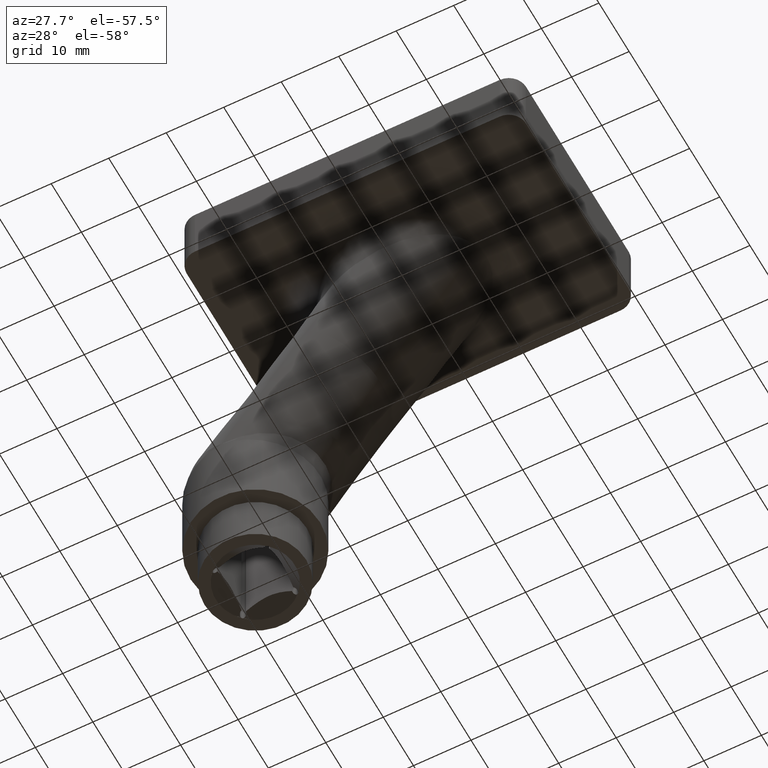
[diagram: clean part render]
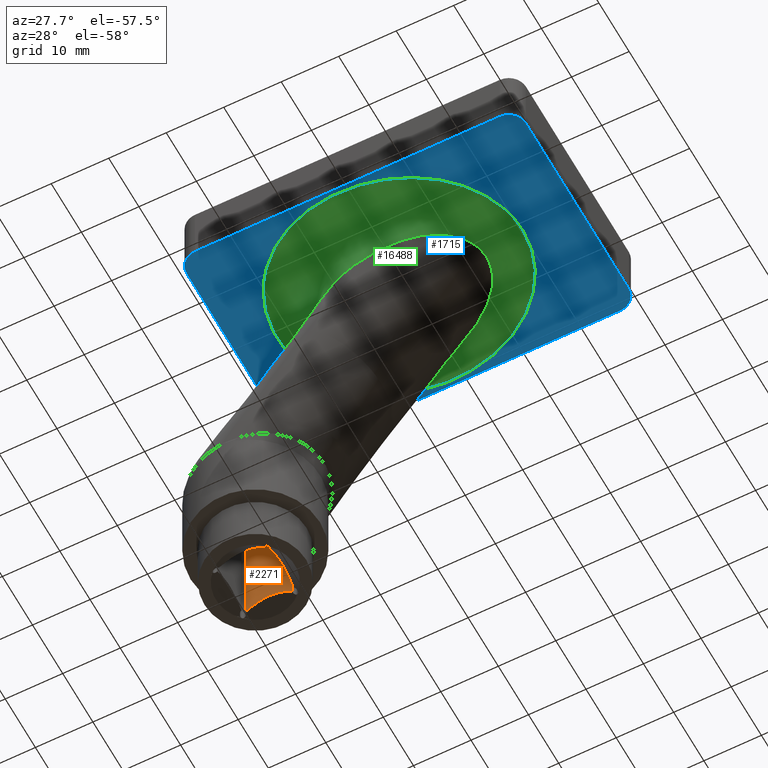
[diagram: same view with three faces highlighted in distinct colors, each labeled with its STEP entity id]
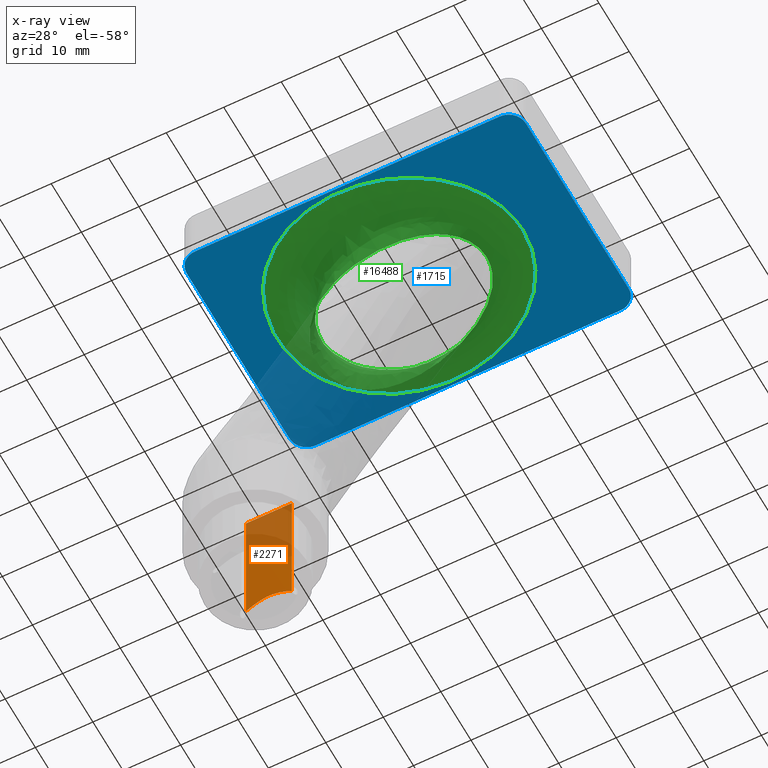
[diagram: x-ray of the same camera — body ghosted, the three highlighted faces saturated]
A machine part, auxiliary view with three faces highlighted in distinct colors.
The next image is the same camera in x-ray (body ghosted, the three faces saturated) — at least one of them is partly hidden behind the body in this view.
Their STEP definitions:

[orange] entity #2271 — the highlighted planar face has unit normal (0, -1, 0).
#389 = ORIENTED_EDGE ( 'NONE', *, *, #975, .F. ) ;
#975 = EDGE_CURVE ( 'NONE', #12867, #9622, #9710, .T. ) ;
#980 = CARTESIAN_POINT ( 'NONE',  ( -22.79888496657452279, 4.500000000000000000, -65.95826789495524167 ) ) ;
#1048 = CARTESIAN_POINT ( 'NONE',  ( -30.50000000000000711, 4.499999999999999112, -66.15683625871720608 ) ) ;
#1074 = LINE ( 'NONE', #12672, #9861 ) ;
#1115 = CARTESIAN_POINT ( 'NONE',  ( -27.22017388820816208, 4.500000000000000000, -64.68014750293195902 ) ) ;
#1302 = CARTESIAN_POINT ( 'NONE',  ( -30.50000000000000711, 4.499999999999999112, -66.15683625871720608 ) ) ;
#1344 = CARTESIAN_POINT ( 'NONE',  ( -22.50000000000000711, 4.499999999999999112, -41.00000000000000000 ) ) ;
#2271 = ADVANCED_FACE ( 'NONE', ( #16017 ), #3902, .T. ) ;
#2321 = CARTESIAN_POINT ( 'NONE',  ( -22.50000000000001066, 4.500000000000004441, -66.15683625871722029 ) ) ;
#2682 = EDGE_CURVE ( 'NONE', #12867, #4519, #6593, .T. ) ;
#3335 = DIRECTION ( 'NONE',  ( 1.000000000000000000, -0.000000000000000000, -0.000000000000000000 ) ) ;
#3902 = PLANE ( 'NONE',  #8485 ) ;
#4263 = DIRECTION ( 'NONE',  ( -0.000000000000000000, -0.000000000000000000, 1.000000000000000000 ) ) ;
#4519 = VERTEX_POINT ( 'NONE', #6264 ) ;
#5855 = ORIENTED_EDGE ( 'NONE', *, *, #16561, .T. ) ;
#6264 = CARTESIAN_POINT ( 'NONE',  ( -22.50000000000001066, 4.500000000000004441, -66.15683625871722029 ) ) ;
#6503 = CARTESIAN_POINT ( 'NONE',  ( -27.93171504531904503, 4.499999999999999112, -64.84561218851740705 ) ) ;
#6530 = VERTEX_POINT ( 'NONE', #1344 ) ;
#6593 = B_SPLINE_CURVE_WITH_KNOTS ( 'NONE', 3,
 ( #1048, #9325, #12275, #16551, #6503, #1115, #16489, #10812, #6694, #8182, #17977, #9382, #12213, #8113, #980, #2321 ),
 .UNSPECIFIED., .F., .F.,
 ( 4, 2, 2, 2, 2, 2, 2, 4 ),
 ( 0.005436506089160069756, 0.007597276169322701722, 0.008677661209404026812, 0.009758046249485350168, 0.01083843128956667526, 0.01191881632964799861, 0.01299920136972932197, 0.01407958640981064533 ),
 .UNSPECIFIED. ) ;
#6694 = CARTESIAN_POINT ( 'NONE',  ( -25.77200503447989988, 4.499999999999999112, -64.68160984082913956 ) ) ;
#7391 = ORIENTED_EDGE ( 'NONE', *, *, #2682, .T. ) ;
#8113 = CARTESIAN_POINT ( 'NONE',  ( -23.10336157524787382, 4.500000000000000888, -65.76812633962509835 ) ) ;
#8182 = CARTESIAN_POINT ( 'NONE',  ( -25.06615294182854825, 4.500000000000000000, -64.84646944479852948 ) ) ;
#8485 = AXIS2_PLACEMENT_3D ( 'NONE', #17937, #10967, #15541 ) ;
#8611 = CARTESIAN_POINT ( 'NONE',  ( -30.50000000000000711, 4.499999999999999112, -101.0315800540038396 ) ) ;
#9054 = LINE ( 'NONE', #9661, #16733 ) ;
#9241 = EDGE_CURVE ( 'NONE', #9622, #6530, #1074, .T. ) ;
#9325 = CARTESIAN_POINT ( 'NONE',  ( -29.89875319160037748, 4.499999999999999112, -65.75738962100449214 ) ) ;
#9382 = CARTESIAN_POINT ( 'NONE',  ( -24.05154407156038587, 4.500000000000000000, -65.24999013304301343 ) ) ;
#9622 = VERTEX_POINT ( 'NONE', #15400 ) ;
#9661 = CARTESIAN_POINT ( 'NONE',  ( -22.50000000000000711, 4.499999999999999112, -101.0315800540038396 ) ) ;
#9710 = LINE ( 'NONE', #8611, #11491 ) ;
#9861 = VECTOR ( 'NONE', #3335, 1000.000000000000000 ) ;
#10812 = CARTESIAN_POINT ( 'NONE',  ( -26.13857558787421809, 4.500000000000000000, -64.63607656205905982 ) ) ;
#10967 = DIRECTION ( 'NONE',  ( 0.000000000000000000, -1.000000000000000000, -0.000000000000000000 ) ) ;
#11491 = VECTOR ( 'NONE', #4263, 1000.000000000000000 ) ;
#12213 = CARTESIAN_POINT ( 'NONE',  ( -23.72972271411647327, 4.499999999999999112, -65.41407760113476400 ) ) ;
#12275 = CARTESIAN_POINT ( 'NONE',  ( -29.26892737583048643, 4.499999999999998224, -65.38535547606734610 ) ) ;
#12672 = CARTESIAN_POINT ( 'NONE',  ( -22.50000000000000711, 4.499999999999999112, -41.00000000000000000 ) ) ;
#12674 = ORIENTED_EDGE ( 'NONE', *, *, #9241, .F. ) ;
#12867 = VERTEX_POINT ( 'NONE', #1302 ) ;
#13950 = DIRECTION ( 'NONE',  ( -0.000000000000000000, -0.000000000000000000, 1.000000000000000000 ) ) ;
#15400 = CARTESIAN_POINT ( 'NONE',  ( -30.50000000000000711, 4.499999999999999112, -41.00000000000000000 ) ) ;
#15541 = DIRECTION ( 'NONE',  ( 0.000000000000000000, 0.000000000000000000, -1.000000000000000000 ) ) ;
#15682 = EDGE_LOOP ( 'NONE', ( #389, #7391, #5855, #12674 ) ) ;
#16017 = FACE_OUTER_BOUND ( 'NONE', #15682, .T. ) ;
#16489 = CARTESIAN_POINT ( 'NONE',  ( -26.86048769065884301, 4.499999999999999112, -64.63600142533013582 ) ) ;
#16551 = CARTESIAN_POINT ( 'NONE',  ( -28.27307158076159155, 4.500000000000000000, -64.96339581073524982 ) ) ;
#16561 = EDGE_CURVE ( 'NONE', #4519, #6530, #9054, .T. ) ;
#16733 = VECTOR ( 'NONE', #13950, 1000.000000000000000 ) ;
#17937 = CARTESIAN_POINT ( 'NONE',  ( -22.50000000000000711, 4.499999999999999112, -101.0315800540038396 ) ) ;
#17977 = CARTESIAN_POINT ( 'NONE',  ( -24.72329756892010622, 4.499999999999999112, -64.96452026264996960 ) ) ;

[blue] entity #1715 — the highlighted planar face has unit normal (0, 0, 1).
#12 = ORIENTED_EDGE ( 'NONE', *, *, #6515, .T. ) ;
#51 = DIRECTION ( 'NONE',  ( 0.000000000000000000, -0.000000000000000000, -1.000000000000000000 ) ) ;
#259 = CARTESIAN_POINT ( 'NONE',  ( 26.49999999999999645, -19.99999999999999645, 0.000000000000000000 ) ) ;
#271 = CARTESIAN_POINT ( 'NONE',  ( -17.25574759524515756, 13.22331163500231632, -3.469446951953614189E-15 ) ) ;
#329 = CARTESIAN_POINT ( 'NONE',  ( 19.18132393218330378, 5.246893871989417590, 0.000000000000000000 ) ) ;
#384 = CARTESIAN_POINT ( 'NONE',  ( 1.802502790597663385, 18.96138225805584909, -3.423875456688388738E-31 ) ) ;
#419 = EDGE_CURVE ( 'NONE', #10309, #8626, #13441, .T. ) ;
#426 = DIRECTION ( 'NONE',  ( -1.000000000000000000, -0.000000000000000000, -0.000000000000000000 ) ) ;
#496 = CARTESIAN_POINT ( 'NONE',  ( 5.037011761510285623, 18.25397969890640226, 1.040834085586084730E-14 ) ) ;
#558 = CARTESIAN_POINT ( 'NONE',  ( -8.128933386736870048, -18.44933239786298174, 7.222237291452186122E-31 ) ) ;
#612 = CARTESIAN_POINT ( 'NONE',  ( -15.24593925470038869, -14.98477108379642608, -0.000000000000000000 ) ) ;
#670 = CARTESIAN_POINT ( 'NONE',  ( 11.01450780495575721, -15.47894451652035208, -3.469446951953614978E-15 ) ) ;
#733 = CARTESIAN_POINT ( 'NONE',  ( 17.84436756901563115, -8.301999087841114289, -3.469446951953615767E-15 ) ) ;
#798 = DIRECTION ( 'NONE',  ( 1.000000000000000000, 0.000000000000000000, 0.000000000000000000 ) ) ;
#915 = DIRECTION ( 'NONE',  ( 1.000000000000000000, 0.000000000000000000, 0.000000000000000000 ) ) ;
#950 = ORIENTED_EDGE ( 'NONE', *, *, #17132, .T. ) ;
#958 = CARTESIAN_POINT ( 'NONE',  ( -29.49999999999999645, 17.00000000000000355, 0.000000000000000000 ) ) ;
#1084 = CIRCLE ( 'NONE', #7914, 2.999999999999999112 ) ;
#1608 = CARTESIAN_POINT ( 'NONE',  ( -0.8487407458965864349, 19.23226107187263523, 3.469446951953614978E-15 ) ) ;
#1672 = CARTESIAN_POINT ( 'NONE',  ( 19.37597228934492222, 4.612822983757392414, 0.000000000000000000 ) ) ;
#1715 = ADVANCED_FACE ( 'NONE', ( #5068, #10567 ), #8179, .F. ) ;
#1726 = CARTESIAN_POINT ( 'NONE',  ( 19.80993721011314435, 2.673063860259522695, -3.469446951953612611E-15 ) ) ;
#1782 = CARTESIAN_POINT ( 'NONE',  ( -0.1783191928115404890, 19.19123126171463056, -3.469446951953613400E-15 ) ) ;
#1900 = CARTESIAN_POINT ( 'NONE',  ( -16.78580260807747138, -13.68671043128202136, 3.469446951953614189E-15 ) ) ;
#1951 = CARTESIAN_POINT ( 'NONE',  ( -26.49999999999999645, 20.00000000000000355, 0.000000000000000000 ) ) ;
#1958 = CARTESIAN_POINT ( 'NONE',  ( -21.29873346366283116, -7.149762476909946152, -5.204170427930422072E-15 ) ) ;
#2016 = CARTESIAN_POINT ( 'NONE',  ( -8.776023853299736999, -18.26253320440223504, -3.469446951953614189E-15 ) ) ;
#2070 = CARTESIAN_POINT ( 'NONE',  ( -19.79992980674632364, -10.11638760502446566, 0.000000000000000000 ) ) ;
#2131 = CARTESIAN_POINT ( 'NONE',  ( -22.65414166795012108, -1.334356758547996957, -1.444447458290434334E-31 ) ) ;
#2383 = DIRECTION ( 'NONE',  ( 0.000000000000000000, -0.000000000000000000, -1.000000000000000000 ) ) ;
#2676 = DIRECTION ( 'NONE',  ( 0.000000000000000000, -0.000000000000000000, -1.000000000000000000 ) ) ;
#3017 = CARTESIAN_POINT ( 'NONE',  ( -8.750501567939437564, 18.26737832130535821, 1.387778780781448200E-14 ) ) ;
#3022 = ORIENTED_EDGE ( 'NONE', *, *, #3125, .T. ) ;
#3080 = CARTESIAN_POINT ( 'NONE',  ( 14.19171188980443077, 12.99330440230905737, 0.000000000000000000 ) ) ;
#3125 = EDGE_CURVE ( 'NONE', #6972, #3617, #15167, .T. ) ;
#3137 = CARTESIAN_POINT ( 'NONE',  ( -19.79217995383566731, 10.12027820356646224, 5.204170427930420494E-15 ) ) ;
#3144 = LINE ( 'NONE', #11710, #12807 ) ;
#3193 = CARTESIAN_POINT ( 'NONE',  ( -15.25820686203977594, 14.96915462888833837, 3.423875456688407130E-31 ) ) ;
#3254 = CARTESIAN_POINT ( 'NONE',  ( 9.342470467623066099, 16.46056486205791103, 3.423875456688388738E-31 ) ) ;
#3314 = CARTESIAN_POINT ( 'NONE',  ( -18.17766166060195587, -12.23635294891863445, -5.204170427930420494E-15 ) ) ;
#3370 = CARTESIAN_POINT ( 'NONE',  ( -13.59965306725388245, -16.10599303540016791, 3.250006781153483711E-31 ) ) ;
#3432 = CARTESIAN_POINT ( 'NONE',  ( 10.45117788784755319, -15.83004887775391012, 3.469446951953614189E-15 ) ) ;
#3491 = CARTESIAN_POINT ( 'NONE',  ( 14.18960962472793774, -13.03565257498073571, 5.204170427930433116E-15 ) ) ;
#3550 = CARTESIAN_POINT ( 'NONE',  ( -22.40948946080885662, -3.315648314045179124, -3.469446951953614978E-15 ) ) ;
#3617 = VERTEX_POINT ( 'NONE', #5134 ) ;
#3788 = VECTOR ( 'NONE', #14320, 1000.000000000000000 ) ;
#4247 = B_SPLINE_CURVE_WITH_KNOTS ( 'NONE', 3,
 ( #12708, #5849, #10245, #1726, #6024, #1672, #329, #7384, #15811, #14460, #4508, #11499, #10136, #11670, #12824, #3080, #7498, #4673, #8716, #3254, #17279, #8830, #8886, #496, #14292, #384, #12950, #1782, #1608, #4445, #13007, #15637, #10190, #11440, #3017, #17160, #4617, #14239, #7272, #3193, #17049, #8661, #271, #11557, #5908, #3137, #15696, #7441, #7331, #4562, #14349, #5968, #8777, #11612, #14406, #17216, #2131, #15927, #3550, #16098, #10419, #7791, #1958, #11775, #2070, #9060, #3314, #11889, #1900, #4845, #612, #8941, #3370, #16160, #13122, #2016, #558, #11832, #14573, #11948, #10486, #13183, #4729, #13354, #4785, #11723, #9002, #4959, #9122, #4904, #6193, #3432, #670, #7554, #14515, #3491, #13295, #13240, #6134, #14690, #15978, #17343, #733, #14630, #6312, #10360, #6252, #16036, #7730, #14750, #7607, #17400 ),
 .UNSPECIFIED., .T., .F.,
 ( 4, 2, 2, 2, 2, 2, 2, 2, 2, 2, 2, 2, 2, 2, 2, 2, 2, 2, 2, 2, 2, 2, 2, 2, 2, 2, 2, 2, 2, 2, 2, 2, 2, 2, 2, 2, 2, 2, 2, 2, 2, 2, 2, 2, 2, 2, 2, 2, 2, 2, 2, 2, 2, 2, 2, 4 ),
 ( 0.000000000000000000, 0.002020911401338640941, 0.004041822802677281883, 0.006062734204015923258, 0.007073189904685242210, 0.008083645605354560296, 0.01212546840803183611, 0.01414637980937047401, 0.01616729121070911018, 0.02020911401338637906, 0.02223002541472502216, 0.02425093681606366181, 0.02829275961874094455, 0.03031367102007958766, 0.03233458242141822730, 0.03637640522409550659, 0.03839731662543414970, 0.04041822802677278587, 0.04446005082945007209, 0.04648096223078870826, 0.04850187363212735137, 0.05052278503346600141, 0.05254369643480463759, 0.05658551923748191687, 0.05759597493815123842, 0.05860643063882055998, 0.06062734204015920308, 0.06466916484283646849, 0.06669007624417511160, 0.06871098764551375471, 0.07073189904685238394, 0.07275281044819102705, 0.07679463325086831327, 0.07881554465220695638, 0.08083645605354558561, 0.08285736745488422872, 0.08487827885622287183, 0.08892010165890015805, 0.09094101306023878728, 0.09296192446157743039, 0.09700374726425473049, 0.09902465866559338747, 0.1010455700669320306, 0.1050873928696093029, 0.1071083042709479460, 0.1091292156722865891, 0.1111501270736252323, 0.1131710384749638754, 0.1172128612776411616, 0.1182233169783104831, 0.1192337726789798047, 0.1212546840803184478, 0.1232755954816570909, 0.1252965068829957340, 0.1273174182843343771, 0.1293383296856729925 ),
 .UNSPECIFIED. ) ;
#4365 = ORIENTED_EDGE ( 'NONE', *, *, #4618, .T. ) ;
#4445 = CARTESIAN_POINT ( 'NONE',  ( -2.854710504209263977, 19.27138749281365548, 3.469446951953614189E-15 ) ) ;
#4508 = CARTESIAN_POINT ( 'NONE',  ( 18.29496561918128705, 7.415051191455348523, 5.204170427930422072E-15 ) ) ;
#4562 = CARTESIAN_POINT ( 'NONE',  ( -21.52477295580469629, 6.535261288060140394, 3.469446951953615767E-15 ) ) ;
#4617 = CARTESIAN_POINT ( 'NONE',  ( -11.85704721780153470, 17.08845460195537314, 0.000000000000000000 ) ) ;
#4618 = EDGE_CURVE ( 'NONE', #9970, #8626, #15368, .T. ) ;
#4673 = CARTESIAN_POINT ( 'NONE',  ( 12.15649306997030088, 14.73356300921880724, 0.000000000000000000 ) ) ;
#4729 = CARTESIAN_POINT ( 'NONE',  ( -0.2357380021158265726, -19.19488544232150318, 5.055566104016655264E-31 ) ) ;
#4785 = CARTESIAN_POINT ( 'NONE',  ( 1.748683438357238051, -18.96859669928658221, -3.469446951953603539E-15 ) ) ;
#4845 = CARTESIAN_POINT ( 'NONE',  ( -15.77622147409410402, -14.56866375761230437, 3.469446951953614189E-15 ) ) ;
#4904 = CARTESIAN_POINT ( 'NONE',  ( 8.704030429825523996, -16.78396459821566467, 5.204170427930421283E-15 ) ) ;
#4959 = CARTESIAN_POINT ( 'NONE',  ( 6.869251291074831123, -17.59103901796119018, -6.938893903907231533E-15 ) ) ;
#4971 = ORIENTED_EDGE ( 'NONE', *, *, #16568, .F. ) ;
#5068 = FACE_BOUND ( 'NONE', #8639, .T. ) ;
#5134 = CARTESIAN_POINT ( 'NONE',  ( 29.49999999999999645, 17.00000000000000355, 0.000000000000000000 ) ) ;
#5561 = DIRECTION ( 'NONE',  ( 8.673617379884035472E-17, -1.000000000000000000, 0.000000000000000000 ) ) ;
#5849 = CARTESIAN_POINT ( 'NONE',  ( 20.01259024382805762, 0.6730591445406197693, 0.000000000000000000 ) ) ;
#5908 = CARTESIAN_POINT ( 'NONE',  ( -18.59359503030958294, 11.72823118697855094, 5.204170427930423650E-15 ) ) ;
#5968 = CARTESIAN_POINT ( 'NONE',  ( -21.95342718329411369, 5.263436271669938549, -5.204170427930420494E-15 ) ) ;
#6024 = CARTESIAN_POINT ( 'NONE',  ( 19.69027418138582419, 3.325906789533940699, -0.000000000000000000 ) ) ;
#6134 = CARTESIAN_POINT ( 'NONE',  ( 16.37830413119792539, -10.53754461055345182, 2.888894916581059157E-31 ) ) ;
#6193 = CARTESIAN_POINT ( 'NONE',  ( 9.295940960859413238, -16.48256198024835939, 3.469446951953614189E-15 ) ) ;
#6252 = CARTESIAN_POINT ( 'NONE',  ( 19.37459036147501124, -4.615626362291560092, 5.204170427930419706E-15 ) ) ;
#6312 = CARTESIAN_POINT ( 'NONE',  ( 18.71105615848640369, -6.509380037646070427, -5.204170427930421283E-15 ) ) ;
#6515 = EDGE_CURVE ( 'NONE', #13121, #11543, #1084, .T. ) ;
#6676 = ORIENTED_EDGE ( 'NONE', *, *, #8418, .F. ) ;
#6834 = DIRECTION ( 'NONE',  ( 0.000000000000000000, -0.000000000000000000, -1.000000000000000000 ) ) ;
#6972 = VERTEX_POINT ( 'NONE', #7395 ) ;
#7010 = CARTESIAN_POINT ( 'NONE',  ( 26.50000000000000000, 17.00000000000000355, 0.000000000000000000 ) ) ;
#7119 = CARTESIAN_POINT ( 'NONE',  ( -26.49999999999999289, -16.99999999999999645, 0.000000000000000000 ) ) ;
#7272 = CARTESIAN_POINT ( 'NONE',  ( -14.16855900437081495, 15.74020879608088030, -5.777789833161748722E-31 ) ) ;
#7299 = CARTESIAN_POINT ( 'NONE',  ( -29.49999999999999289, -19.99999999999999645, 0.000000000000000000 ) ) ;
#7303 = VERTEX_POINT ( 'NONE', #12324 ) ;
#7331 = CARTESIAN_POINT ( 'NONE',  ( -21.28160699028295255, 7.158090429882301819, 3.469446951953613400E-15 ) ) ;
#7384 = CARTESIAN_POINT ( 'NONE',  ( 18.83358469475315999, 6.184039409142709331, 0.000000000000000000 ) ) ;
#7395 = CARTESIAN_POINT ( 'NONE',  ( 26.50000000000000000, 20.00000000000000355, 0.000000000000000000 ) ) ;
#7441 = CARTESIAN_POINT ( 'NONE',  ( -21.15209182340150562, 7.465099406425288464, 3.469446951953614189E-15 ) ) ;
#7498 = CARTESIAN_POINT ( 'NONE',  ( 13.69501840676910653, 13.44932262735709294, -0.000000000000000000 ) ) ;
#7554 = CARTESIAN_POINT ( 'NONE',  ( 12.11133259787664862, -14.72485259914834721, -3.469446951953614189E-15 ) ) ;
#7594 = CARTESIAN_POINT ( 'NONE',  ( -26.49999999999999289, -19.99999999999999645, 0.000000000000000000 ) ) ;
#7607 = CARTESIAN_POINT ( 'NONE',  ( 20.01240226575606584, -0.6748179855327099963, 5.777789833161688291E-31 ) ) ;
#7730 = CARTESIAN_POINT ( 'NONE',  ( 19.81127537088795165, -2.661477156598849980, 3.469446951953598017E-15 ) ) ;
#7782 = AXIS2_PLACEMENT_3D ( 'NONE', #13687, #14952, #915 ) ;
#7791 = CARTESIAN_POINT ( 'NONE',  ( -21.54338578192724896, -6.520388827000110687, -3.469446951953615767E-15 ) ) ;
#7914 = AXIS2_PLACEMENT_3D ( 'NONE', #15366, #51, #11161 ) ;
#7960 = LINE ( 'NONE', #16892, #8413 ) ;
#8179 = PLANE ( 'NONE',  #7782 ) ;
#8413 = VECTOR ( 'NONE', #5561, 1000.000000000000000 ) ;
#8418 = EDGE_CURVE ( 'NONE', #9970, #3617, #10988, .T. ) ;
#8517 = DIRECTION ( 'NONE',  ( 1.000000000000000000, 0.000000000000000000, 0.000000000000000000 ) ) ;
#8620 = AXIS2_PLACEMENT_3D ( 'NONE', #9447, #2383, #798 ) ;
#8626 = VERTEX_POINT ( 'NONE', #259 ) ;
#8639 = EDGE_LOOP ( 'NONE', ( #950 ) ) ;
#8661 = CARTESIAN_POINT ( 'NONE',  ( -16.77916368821345117, 13.68533102402647827, -3.469446951953612611E-15 ) ) ;
#8716 = CARTESIAN_POINT ( 'NONE',  ( 11.06592043517484925, 15.48234298542397980, 1.155557966632343088E-30 ) ) ;
#8777 = CARTESIAN_POINT ( 'NONE',  ( -22.12737808373417892, 4.620683517185214306, -3.469446951953622472E-15 ) ) ;
#8830 = CARTESIAN_POINT ( 'NONE',  ( 7.545667667244942756, 17.31740039786564012, 5.204170427930422072E-15 ) ) ;
#8876 = CARTESIAN_POINT ( 'NONE',  ( 29.49999999999999645, 20.00000000000000355, 0.000000000000000000 ) ) ;
#8886 = CARTESIAN_POINT ( 'NONE',  ( 6.924574971257657197, 17.57176283524646720, 1.040834085586083468E-14 ) ) ;
#8941 = CARTESIAN_POINT ( 'NONE',  ( -14.15884239650773502, -15.75229684242042083, 0.000000000000000000 ) ) ;
#9002 = CARTESIAN_POINT ( 'NONE',  ( 4.984400791744038273, -18.26750159892769076, -6.938893903907233111E-15 ) ) ;
#9060 = CARTESIAN_POINT ( 'NONE',  ( -18.60782936379017372, -11.71861030243835522, -3.423875456688370784E-31 ) ) ;
#9122 = CARTESIAN_POINT ( 'NONE',  ( 7.492033717893788136, -17.33777232417586234, 5.204170427930421283E-15 ) ) ;
#9447 = CARTESIAN_POINT ( 'NONE',  ( 26.49999999999999645, -16.99999999999999289, 0.000000000000000000 ) ) ;
#9703 = DIRECTION ( 'NONE',  ( 1.000000000000000000, 0.000000000000000000, 0.000000000000000000 ) ) ;
#9970 = VERTEX_POINT ( 'NONE', #11058 ) ;
#10016 = CIRCLE ( 'NONE', #15085, 2.999999999999999112 ) ;
#10136 = CARTESIAN_POINT ( 'NONE',  ( 16.81305094011355905, 10.01511776551828881, 0.000000000000000000 ) ) ;
#10190 = CARTESIAN_POINT ( 'NONE',  ( -6.803587777780267132, 18.76609105128302346, 3.469446951953615767E-15 ) ) ;
#10245 = CARTESIAN_POINT ( 'NONE',  ( 19.97121657841041653, 1.347839570891224970, -3.469446951953615767E-15 ) ) ;
#10309 = VERTEX_POINT ( 'NONE', #7594 ) ;
#10360 = CARTESIAN_POINT ( 'NONE',  ( 19.17590982609834782, -5.260432318850533306, -5.204170427930422072E-15 ) ) ;
#10419 = CARTESIAN_POINT ( 'NONE',  ( -21.95916871762797840, -5.253229604945508946, -3.469446951953613400E-15 ) ) ;
#10486 = CARTESIAN_POINT ( 'NONE',  ( -2.905003448689253531, -19.26955221333398782, -1.387778780781458297E-14 ) ) ;
#10567 = FACE_OUTER_BOUND ( 'NONE', #11452, .T. ) ;
#10988 = LINE ( 'NONE', #8876, #14261 ) ;
#11058 = CARTESIAN_POINT ( 'NONE',  ( 29.49999999999999645, -16.99999999999999289, 0.000000000000000000 ) ) ;
#11161 = DIRECTION ( 'NONE',  ( 1.000000000000000000, 0.000000000000000000, 0.000000000000000000 ) ) ;
#11440 = CARTESIAN_POINT ( 'NONE',  ( -8.104306242534329741, 18.45354457161061390, 3.469446951953614189E-15 ) ) ;
#11452 = EDGE_LOOP ( 'NONE', ( #6676, #4365, #13236, #16609, #4971, #12, #12835, #3022 ) ) ;
#11499 = CARTESIAN_POINT ( 'NONE',  ( 17.53804818635100560, 8.909769567557933811, 5.204170427930421283E-15 ) ) ;
#11543 = VERTEX_POINT ( 'NONE', #1951 ) ;
#11557 = CARTESIAN_POINT ( 'NONE',  ( -18.16179229064365330, 12.24645112726504159, -3.469446951953615767E-15 ) ) ;
#11612 = CARTESIAN_POINT ( 'NONE',  ( -22.54573341566602096, 2.674882909008491350, -3.469446951953605511E-15 ) ) ;
#11670 = CARTESIAN_POINT ( 'NONE',  ( 15.56812993101553566, 11.55397873959219268, 0.000000000000000000 ) ) ;
#11710 = CARTESIAN_POINT ( 'NONE',  ( -29.49999999999999645, 20.00000000000000355, 0.000000000000000000 ) ) ;
#11723 = CARTESIAN_POINT ( 'NONE',  ( 3.703907355932424039, -18.61030196343656584, -3.469446951953614189E-15 ) ) ;
#11775 = CARTESIAN_POINT ( 'NONE',  ( -20.47312819043015608, -8.974462389260507322, -5.204170427930421283E-15 ) ) ;
#11832 = CARTESIAN_POINT ( 'NONE',  ( -6.835063868554485111, -18.76137622254659121, 8.559688641720927179E-31 ) ) ;
#11889 = CARTESIAN_POINT ( 'NONE',  ( -17.26630055368678285, -13.22046659875033825, -5.204170427930421283E-15 ) ) ;
#11948 = CARTESIAN_POINT ( 'NONE',  ( -4.224479732083636030, -19.18368245871317157, 3.469446951953525048E-15 ) ) ;
#12324 = CARTESIAN_POINT ( 'NONE',  ( 20.01249625479205818, -0.0008794204960473978256, 0.000000000000000000 ) ) ;
#12708 = CARTESIAN_POINT ( 'NONE',  ( 20.01249625479206173, -0.0008794204960475035353, 2.888894916580854217E-31 ) ) ;
#12807 = VECTOR ( 'NONE', #426, 1000.000000000000000 ) ;
#12824 = CARTESIAN_POINT ( 'NONE',  ( 15.12665937873019395, 12.04687585781659287, -0.000000000000000000 ) ) ;
#12835 = ORIENTED_EDGE ( 'NONE', *, *, #16359, .F. ) ;
#12950 = CARTESIAN_POINT ( 'NONE',  ( 1.145897975334389640, 19.05579658287193467, -3.469446951953613400E-15 ) ) ;
#13007 = CARTESIAN_POINT ( 'NONE',  ( -4.180117291731900053, 19.18729551083243479, 0.000000000000000000 ) ) ;
#13121 = VERTEX_POINT ( 'NONE', #958 ) ;
#13122 = CARTESIAN_POINT ( 'NONE',  ( -10.67107842840536946, -17.61952165026855255, -3.469446951953614189E-15 ) ) ;
#13183 = CARTESIAN_POINT ( 'NONE',  ( -0.9072363724584378009, -19.23448887584937950, -1.387778780781452144E-14 ) ) ;
#13214 = EDGE_CURVE ( 'NONE', #10309, #15488, #10016, .T. ) ;
#13236 = ORIENTED_EDGE ( 'NONE', *, *, #419, .F. ) ;
#13240 = CARTESIAN_POINT ( 'NONE',  ( 16.17482430992993869, -10.80174239403848624, 0.000000000000000000 ) ) ;
#13295 = CARTESIAN_POINT ( 'NONE',  ( 15.12645950999159439, -12.09378304886523203, 0.000000000000000000 ) ) ;
#13354 = CARTESIAN_POINT ( 'NONE',  ( 1.091153722399145209, -19.06185808446930707, 5.135813185032446481E-31 ) ) ;
#13441 = LINE ( 'NONE', #7299, #3788 ) ;
#13687 = CARTESIAN_POINT ( 'NONE',  ( 0.000000000000000000, 0.000000000000000000, 0.000000000000000000 ) ) ;
#14239 = CARTESIAN_POINT ( 'NONE',  ( -13.59883364874932532, 16.10131626900895796, 0.000000000000000000 ) ) ;
#14261 = VECTOR ( 'NONE', #17693, 1000.000000000000000 ) ;
#14292 = CARTESIAN_POINT ( 'NONE',  ( 3.756093236521085288, 18.59944195774702180, 0.000000000000000000 ) ) ;
#14320 = DIRECTION ( 'NONE',  ( 1.000000000000000000, 0.000000000000000000, 0.000000000000000000 ) ) ;
#14349 = CARTESIAN_POINT ( 'NONE',  ( -21.63873056346839263, 6.218451581440977982, -5.204170427930422072E-15 ) ) ;
#14406 = CARTESIAN_POINT ( 'NONE',  ( -22.68791368157156541, 1.354508512987127489, 3.469446951953598806E-15 ) ) ;
#14460 = CARTESIAN_POINT ( 'NONE',  ( 18.43914588633452922, 7.109494042467683350, -2.739100365350716245E-30 ) ) ;
#14515 = CARTESIAN_POINT ( 'NONE',  ( 12.64697168910241665, -14.32004303414327495, 5.204170427930407873E-15 ) ) ;
#14573 = CARTESIAN_POINT ( 'NONE',  ( -6.184795414104144129, -18.88795296907057875, 3.469446951953636671E-15 ) ) ;
#14630 = CARTESIAN_POINT ( 'NONE',  ( 18.44413321669804517, -7.117400298144795023, -3.469446951953614189E-15 ) ) ;
#14690 = CARTESIAN_POINT ( 'NONE',  ( 16.77241555345485224, -9.997137891519914277, 1.027162637006467401E-30 ) ) ;
#14750 = CARTESIAN_POINT ( 'NONE',  ( 19.97156297238658240, -1.339802771174343654, 3.469446951953597623E-15 ) ) ;
#14952 = DIRECTION ( 'NONE',  ( -0.000000000000000000, 0.000000000000000000, 1.000000000000000000 ) ) ;
#15085 = AXIS2_PLACEMENT_3D ( 'NONE', #7119, #2676, #8517 ) ;
#15167 = CIRCLE ( 'NONE', #17866, 2.999999999999999112 ) ;
#15366 = CARTESIAN_POINT ( 'NONE',  ( -26.49999999999999645, 17.00000000000000355, 0.000000000000000000 ) ) ;
#15368 = CIRCLE ( 'NONE', #8620, 2.999999999999999112 ) ;
#15488 = VERTEX_POINT ( 'NONE', #17379 ) ;
#15637 = CARTESIAN_POINT ( 'NONE',  ( -6.150011894375841059, 18.89259886713325898, 0.000000000000000000 ) ) ;
#15696 = CARTESIAN_POINT ( 'NONE',  ( -20.46543835572193260, 8.978440279444219740, 3.469446951953614189E-15 ) ) ;
#15811 = CARTESIAN_POINT ( 'NONE',  ( 18.70835916686747780, 6.494089949875255563, -2.744450170751808288E-30 ) ) ;
#15927 = CARTESIAN_POINT ( 'NONE',  ( -22.51405379972033671, -2.660108824113103676, 3.423875456688370784E-31 ) ) ;
#15978 = CARTESIAN_POINT ( 'NONE',  ( 16.96349999263718189, -9.720187980252497084, 5.204170427930422072E-15 ) ) ;
#16036 = CARTESIAN_POINT ( 'NONE',  ( 19.69181889770427674, -3.316632921726338168, 5.204170427930420494E-15 ) ) ;
#16098 = CARTESIAN_POINT ( 'NONE',  ( -22.13204793101692758, -4.612208919380940131, -3.469446951953614189E-15 ) ) ;
#16160 = CARTESIAN_POINT ( 'NONE',  ( -11.87775699512610572, -17.08186921640050571, -2.704861610783841589E-29 ) ) ;
#16359 = EDGE_CURVE ( 'NONE', #6972, #11543, #3144, .T. ) ;
#16568 = EDGE_CURVE ( 'NONE', #13121, #15488, #7960, .T. ) ;
#16609 = ORIENTED_EDGE ( 'NONE', *, *, #13214, .T. ) ;
#16892 = CARTESIAN_POINT ( 'NONE',  ( -29.49999999999999645, 20.00000000000000355, 0.000000000000000000 ) ) ;
#17049 = CARTESIAN_POINT ( 'NONE',  ( -15.78039518208496794, 14.55825460643133340, -3.469446951953614189E-15 ) ) ;
#17132 = EDGE_CURVE ( 'NONE', #7303, #7303, #4247, .T. ) ;
#17160 = CARTESIAN_POINT ( 'NONE',  ( -10.64356525686504185, 17.62676560951882365, 1.387778780781445676E-14 ) ) ;
#17216 = CARTESIAN_POINT ( 'NONE',  ( -22.68955307447685854, -0.6619235971975805377, 3.469446951953605906E-15 ) ) ;
#17279 = CARTESIAN_POINT ( 'NONE',  ( 8.753261507622539739, 16.76227041985914568, 5.204170427930423650E-15 ) ) ;
#17343 = CARTESIAN_POINT ( 'NONE',  ( 17.51151502512621150, -8.878572924612848638, 5.204170427930421283E-15 ) ) ;
#17379 = CARTESIAN_POINT ( 'NONE',  ( -29.49999999999999289, -17.00000000000000000, 0.000000000000000000 ) ) ;
#17400 = CARTESIAN_POINT ( 'NONE',  ( 20.01249625479206173, -0.0008794204960475035353, 2.888894916580854217E-31 ) ) ;
#17693 = DIRECTION ( 'NONE',  ( -0.000000000000000000, 1.000000000000000000, -0.000000000000000000 ) ) ;
#17866 = AXIS2_PLACEMENT_3D ( 'NONE', #7010, #6834, #9703 ) ;

[green] entity #16488 — the highlighted face is a freeform B-spline surface patch.
#39 = CARTESIAN_POINT ( 'NONE',  ( 12.91094664629832600, -14.11031796857637666, 2.081668171172168513E-14 ) ) ;
#103 = CARTESIAN_POINT ( 'NONE',  ( -1.975089806656604496, -11.29615663439827955, -7.114734264599975653E-12 ) ) ;
#165 = CARTESIAN_POINT ( 'NONE',  ( -6.095608568434742303, -8.822336541749308481, -1.171648321877291005E-12 ) ) ;
#228 = CARTESIAN_POINT ( 'NONE',  ( -6.689396433296291633, -10.69843151577119933, -9.606241794627198516 ) ) ;
#271 = CARTESIAN_POINT ( 'NONE',  ( -17.25574759524515756, 13.22331163500231632, -3.469446951953614189E-15 ) ) ;
#288 = CARTESIAN_POINT ( 'NONE',  ( -5.863269831885408401, -18.97181738419268271, -5.204170427930421283E-15 ) ) ;
#290 = CARTESIAN_POINT ( 'NONE',  ( 5.316243049904927354, -9.968661294944068274, -5.519343211838812380 ) ) ;
#329 = CARTESIAN_POINT ( 'NONE',  ( 19.18132393218330378, 5.246893871989417590, 0.000000000000000000 ) ) ;
#345 = CARTESIAN_POINT ( 'NONE',  ( -11.58647065117727593, -8.436215235432358739, -11.08879581367021139 ) ) ;
#384 = CARTESIAN_POINT ( 'NONE',  ( 1.802502790597663385, 18.96138225805584909, -3.423875456688388738E-31 ) ) ;
#401 = CARTESIAN_POINT ( 'NONE',  ( -8.847771220675378245, -2.346349314116517704, 3.479729433423714359E-12 ) ) ;
#403 = CARTESIAN_POINT ( 'NONE',  ( 13.70670344733037638, -1.355252715606880543E-15, -3.076893633488702928 ) ) ;
#459 = CARTESIAN_POINT ( 'NONE',  ( -15.75202553935920591, 0.2247136540519290293, -11.97561441083115241 ) ) ;
#462 = CARTESIAN_POINT ( 'NONE',  ( -2.917312237961914523, -11.24693078246511568, -8.320427164051173108 ) ) ;
#496 = CARTESIAN_POINT ( 'NONE',  ( 5.037011761510285623, 18.25397969890640226, 1.040834085586084730E-14 ) ) ;
#512 = CARTESIAN_POINT ( 'NONE',  ( -12.73149668779649879, 16.64069821652027414, -5.204170427930421283E-15 ) ) ;
#514 = CARTESIAN_POINT ( 'NONE',  ( -5.402626412027115244, -10.98516654026990125, -9.176405043126390382 ) ) ;
#558 = CARTESIAN_POINT ( 'NONE',  ( -8.128933386736870048, -18.44933239786298174, 7.222237291452186122E-31 ) ) ;
#575 = CARTESIAN_POINT ( 'NONE',  ( -8.879751030993245919, 1.003575219730908241, 0.000000000000000000 ) ) ;
#576 = CARTESIAN_POINT ( 'NONE',  ( -14.66808036381738312, -4.733338070191972946, -11.79129905251430088 ) ) ;
#612 = CARTESIAN_POINT ( 'NONE',  ( -15.24593925470038869, -14.98477108379642608, -0.000000000000000000 ) ) ;
#629 = CARTESIAN_POINT ( 'NONE',  ( -8.859157257012002518, 1.852903140682691685, 1.738099442774122078E-12 ) ) ;
#658 = CARTESIAN_POINT ( 'NONE',  ( 9.845953801584721887, 7.435530149827894952, -4.130130989714408507 ) ) ;
#670 = CARTESIAN_POINT ( 'NONE',  ( 11.01450780495575721, -15.47894451652035208, -3.469446951953614978E-15 ) ) ;
#686 = CARTESIAN_POINT ( 'NONE',  ( -10.56442448224816388, 9.144854343437458510, -10.81465768157489471 ) ) ;
#688 = CARTESIAN_POINT ( 'NONE',  ( 10.06832845828597378, 7.249933623520584902, -4.065902915771512305 ) ) ;
#718 = CARTESIAN_POINT ( 'NONE',  ( 5.948681877035641108, 11.62770640983286796, -2.022849255759463503E-12 ) ) ;
#733 = CARTESIAN_POINT ( 'NONE',  ( 17.84436756901563115, -8.301999087841114289, -3.469446951953615767E-15 ) ) ;
#748 = CARTESIAN_POINT ( 'NONE',  ( -14.07464485134559951, 5.823121934838404457, -11.67917382231238932 ) ) ;
#769 = EDGE_LOOP ( 'NONE', ( #16120 ) ) ;
#774 = CARTESIAN_POINT ( 'NONE',  ( 13.70920937102281556, 13.42622011158202433, 6.938893903907228378E-15 ) ) ;
#824 = CARTESIAN_POINT ( 'NONE',  ( 10.82985483060694598, 6.575767153482567018, -3.847667329912344059 ) ) ;
#882 = CARTESIAN_POINT ( 'NONE',  ( 8.956153095040084722, 8.096612692936581368, -4.391623914793816752 ) ) ;
#943 = CARTESIAN_POINT ( 'NONE',  ( 15.04341850548288662, 4.677219806306338157, 5.813775744861297018E-13 ) ) ;
#1012 = CARTESIAN_POINT ( 'NONE',  ( 13.37399239352910385, 7.278779232469246629, -2.319502191661299701E-12 ) ) ;
#1137 = CARTESIAN_POINT ( 'NONE',  ( 19.98294030186021430, 0.9916113097756049655, 1.734723475976807094E-15 ) ) ;
#1141 = CARTESIAN_POINT ( 'NONE',  ( 16.08166258583378294, 0.7585585654720571336, 2.602085213965210247E-15 ) ) ;
#1164 = CARTESIAN_POINT ( 'NONE',  ( 13.70670344733037282, -2.077520377691108076E-15, -3.076893633488702040 ) ) ;
#1173 = FACE_OUTER_BOUND ( 'NONE', #769, .T. ) ;
#1273 = CARTESIAN_POINT ( 'NONE',  ( 0.7508708627361175836, -11.09335746009676527, -7.046612371249314499 ) ) ;
#1332 = CARTESIAN_POINT ( 'NONE',  ( 14.27404316064771272, -6.032206973777483938, -5.768746746887312058E-13 ) ) ;
#1389 = CARTESIAN_POINT ( 'NONE',  ( 13.42766772101752970, -13.68023180657440996, 0.000000000000000000 ) ) ;
#1391 = FACE_OUTER_BOUND ( 'NONE', #14236, .T. ) ;
#1449 = CARTESIAN_POINT ( 'NONE',  ( 17.50673253949676322, -8.869111969091107994, 0.000000000000000000 ) ) ;
#1510 = CARTESIAN_POINT ( 'NONE',  ( -2.845594879864144833, -10.95548455778137331, 6.731927559123583418E-12 ) ) ;
#1568 = CARTESIAN_POINT ( 'NONE',  ( -8.871185402470127102, -1.560711018732398259, -2.871377642653554611E-12 ) ) ;
#1608 = CARTESIAN_POINT ( 'NONE',  ( -0.8487407458965864349, 19.23226107187263523, 3.469446951953614978E-15 ) ) ;
#1627 = CARTESIAN_POINT ( 'NONE',  ( -14.70019493302137725, -4.665405272069096831, -11.79705600035184965 ) ) ;
#1629 = CARTESIAN_POINT ( 'NONE',  ( -6.638093571480373711, -10.71093163339886978, -9.589221733869297992 ) ) ;
#1672 = CARTESIAN_POINT ( 'NONE',  ( 19.37597228934492222, 4.612822983757392414, 0.000000000000000000 ) ) ;
#1684 = CARTESIAN_POINT ( 'NONE',  ( -15.75267802941901074, -0.2035400737618551226, -11.97560945024298107 ) ) ;
#1726 = CARTESIAN_POINT ( 'NONE',  ( 19.80993721011314435, 2.673063860259522695, -3.469446951953612611E-15 ) ) ;
#1745 = CARTESIAN_POINT ( 'NONE',  ( -8.817042153360818091, -2.969365538489273870, -6.844547251016030207E-12 ) ) ;
#1782 = CARTESIAN_POINT ( 'NONE',  ( -0.1783191928115404890, 19.19123126171463056, -3.469446951953613400E-15 ) ) ;
#1800 = CARTESIAN_POINT ( 'NONE',  ( -20.89651577225523482, -8.060556863662039717, 5.204170427930421283E-15 ) ) ;
#1802 = CARTESIAN_POINT ( 'NONE',  ( 12.97475082236916499, -3.434703371400443572, -3.265495865343051030 ) ) ;
#1858 = CARTESIAN_POINT ( 'NONE',  ( -14.94004380609289839, 4.107289912664938925, -11.84220679744903215 ) ) ;
#1860 = CARTESIAN_POINT ( 'NONE',  ( 2.073506906042043685, -10.88035897870554791, -6.594647015706353699 ) ) ;
#1900 = CARTESIAN_POINT ( 'NONE',  ( -16.78580260807747138, -13.68671043128202136, 3.469446951953614189E-15 ) ) ;
#1916 = CARTESIAN_POINT ( 'NONE',  ( -8.890964018119969836, 0.09331423205033816115, 4.642732113127075158E-12 ) ) ;
#1918 = CARTESIAN_POINT ( 'NONE',  ( -7.920681394564289768, 10.35380390795258165, -10.01286716228783114 ) ) ;
#1958 = CARTESIAN_POINT ( 'NONE',  ( -21.29873346366283116, -7.149762476909946152, -5.204170427930422072E-15 ) ) ;
#1977 = CARTESIAN_POINT ( 'NONE',  ( -8.861926733224585462, 1.755365213904784172, -1.738863812956509897E-12 ) ) ;
#1981 = CARTESIAN_POINT ( 'NONE',  ( -15.31163373991133803, -3.084110848384693071, -11.90485750498204531 ) ) ;
#2016 = CARTESIAN_POINT ( 'NONE',  ( -8.776023853299736999, -18.26253320440223504, -3.469446951953614189E-15 ) ) ;
#2031 = CARTESIAN_POINT ( 'NONE',  ( -8.606525618042899950, 4.445466223625764712, -2.909245921666113183E-12 ) ) ;
#2032 = CARTESIAN_POINT ( 'NONE',  ( -13.56685308547072033, 6.531758211822004334, -11.57411390438014642 ) ) ;
#2054 = CARTESIAN_POINT ( 'NONE',  ( -0.09126452435732933244, 11.17079845105076252, -7.341175236163116402 ) ) ;
#2070 = CARTESIAN_POINT ( 'NONE',  ( -19.79992980674632364, -10.11638760502446566, 0.000000000000000000 ) ) ;
#2088 = CARTESIAN_POINT ( 'NONE',  ( -14.52240514603185062, 5.062257596803124038, -11.76676583980832369 ) ) ;
#2116 = CARTESIAN_POINT ( 'NONE',  ( 11.36145222500275231, 15.29003470604824777, 5.204170427930421283E-15 ) ) ;
#2131 = CARTESIAN_POINT ( 'NONE',  ( -22.65414166795012108, -1.334356758547996957, -1.444447458290434334E-31 ) ) ;
#2145 = CARTESIAN_POINT ( 'NONE',  ( 13.41911709634750594, 2.209410164428078360, -3.150764212279923537 ) ) ;
#2171 = CARTESIAN_POINT ( 'NONE',  ( 0.1730462837796259423, 19.16250955547028312, -1.040834085586084257E-14 ) ) ;
#2229 = CARTESIAN_POINT ( 'NONE',  ( 5.448492588091006894, 11.73447697050724869, -2.602085213965211036E-15 ) ) ;
#2286 = CARTESIAN_POINT ( 'NONE',  ( 7.870678830001814674, 17.17608629893318195, -3.469446951953614189E-15 ) ) ;
#2342 = CARTESIAN_POINT ( 'NONE',  ( 19.07116226161006978, -5.569791025486773961, -3.469446951953614189E-15 ) ) ;
#2345 = CARTESIAN_POINT ( 'NONE',  ( 12.16515155983584151, 4.907173140427434355, -3.481544722536105141 ) ) ;
#2354 = EDGE_CURVE ( 'NONE', #8171, #8171, #6981, .T. ) ;
#2414 = CARTESIAN_POINT ( 'NONE',  ( 12.39523199863184111, 4.546010789978776501, -3.419775619167798375 ) ) ;
#2476 = CARTESIAN_POINT ( 'NONE',  ( 19.90262369870236014, 2.336100966585562322, 1.734723475976807094E-15 ) ) ;
#2530 = CARTESIAN_POINT ( 'NONE',  ( 13.68181344736359861, -1.039238153396913722, -3.082948142435913752 ) ) ;
#2595 = CARTESIAN_POINT ( 'NONE',  ( 16.08166258583378294, 0.7585585654720571336, 2.602085213965210247E-15 ) ) ;
#2657 = CARTESIAN_POINT ( 'NONE',  ( 13.82266826797547132, -6.656319918629005628, 2.883255941380848557E-13 ) ) ;
#2714 = CARTESIAN_POINT ( 'NONE',  ( 13.16293555744124788, -7.455297552680541173, -2.870719816539948701E-13 ) ) ;
#2780 = CARTESIAN_POINT ( 'NONE',  ( 9.605765170456038504, -16.34932242493012211, 5.204170427930421283E-15 ) ) ;
#2845 = CARTESIAN_POINT ( 'NONE',  ( 2.863810890368827966, -12.01125333499098957, 2.316304805591924794E-12 ) ) ;
#2911 = CARTESIAN_POINT ( 'NONE',  ( 3.839999148744707824, -10.45137089507687733, -6.002457653233418178 ) ) ;
#2971 = CARTESIAN_POINT ( 'NONE',  ( -8.866610486700757576, -1.750566646758497269, 3.516007375583295799E-12 ) ) ;
#3017 = CARTESIAN_POINT ( 'NONE',  ( -8.750501567939437564, 18.26737832130535821, 1.387778780781448200E-14 ) ) ;
#3034 = CARTESIAN_POINT ( 'NONE',  ( -11.25102548460481344, -8.680010868086279530, -10.99909567585449999 ) ) ;
#3037 = CARTESIAN_POINT ( 'NONE',  ( -8.249795973645293046, -10.22167894102856955, -10.11192777419707234 ) ) ;
#3080 = CARTESIAN_POINT ( 'NONE',  ( 14.19171188980443077, 12.99330440230905737, 0.000000000000000000 ) ) ;
#3099 = CARTESIAN_POINT ( 'NONE',  ( -8.891256638923541900, -0.09013905000210972740, -1.161884708753725448E-12 ) ) ;
#3101 = CARTESIAN_POINT ( 'NONE',  ( -11.62729121412516875, -8.406376070357689301, -11.09968772523090763 ) ) ;
#3137 = CARTESIAN_POINT ( 'NONE',  ( -19.79217995383566731, 10.12027820356646224, 5.204170427930420494E-15 ) ) ;
#3156 = CARTESIAN_POINT ( 'NONE',  ( -8.854834334132606344, -2.145032959559358687, -3.476830825924140792E-12 ) ) ;
#3193 = CARTESIAN_POINT ( 'NONE',  ( -15.25820686203977594, 14.96915462888833837, 3.423875456688407130E-31 ) ) ;
#3213 = CARTESIAN_POINT ( 'NONE',  ( -3.236156158856275944, -19.25490168495641186, -5.204170427930421283E-15 ) ) ;
#3214 = CARTESIAN_POINT ( 'NONE',  ( 12.59187649360569239, -4.222154610517640627, -3.366163836614056493 ) ) ;
#3254 = CARTESIAN_POINT ( 'NONE',  ( 9.342470467623066099, 16.46056486205791103, 3.423875456688388738E-31 ) ) ;
#3273 = CARTESIAN_POINT ( 'NONE',  ( -15.41012023679191323, 2.718630246984297560, -11.92245709915498786 ) ) ;
#3314 = CARTESIAN_POINT ( 'NONE',  ( -18.17766166060195587, -12.23635294891863445, -5.204170427930420494E-15 ) ) ;
#3329 = CARTESIAN_POINT ( 'NONE',  ( -13.48173947242386284, 6.582244948129431172, -11.55112211082447260 ) ) ;
#3331 = CARTESIAN_POINT ( 'NONE',  ( 9.734842889347197215, 7.524625371531048046, -4.162349150006780185 ) ) ;
#3370 = CARTESIAN_POINT ( 'NONE',  ( -13.59965306725388245, -16.10599303540016791, 3.250006781153483711E-31 ) ) ;
#3387 = CARTESIAN_POINT ( 'NONE',  ( -15.22935450993154483, 3.319509339802296122, -11.89232235527186354 ) ) ;
#3389 = CARTESIAN_POINT ( 'NONE',  ( 12.35714604701106012, 4.621989326119428476, -3.429747398599871655 ) ) ;
#3432 = CARTESIAN_POINT ( 'NONE',  ( 10.45117788784755319, -15.83004887775391012, 3.469446951953614189E-15 ) ) ;
#3445 = CARTESIAN_POINT ( 'NONE',  ( -8.875970207314834326, 1.186935299957572632, 3.471743275473802613E-12 ) ) ;
#3448 = CARTESIAN_POINT ( 'NONE',  ( -11.69904026815798659, 8.374776859663876749, -11.12477838397711238 ) ) ;
#3473 = CARTESIAN_POINT ( 'NONE',  ( 8.379427507012328746, 10.86921851954202545, 6.071532165918824830E-15 ) ) ;
#3491 = CARTESIAN_POINT ( 'NONE',  ( 14.18960962472793774, -13.03565257498073571, 5.204170427930433116E-15 ) ) ;
#3508 = CARTESIAN_POINT ( 'NONE',  ( -17.93251627770805356, 12.50731083639213104, 6.938893903907228378E-15 ) ) ;
#3511 = CARTESIAN_POINT ( 'NONE',  ( 11.59018459478719620, 5.697798635348648943, -3.637695703120145119 ) ) ;
#3529 = CARTESIAN_POINT ( 'NONE',  ( -5.813201879153547580, 10.89236789850482090, -9.316608154419121490 ) ) ;
#3532 = CARTESIAN_POINT ( 'NONE',  ( -1.894180554579477871, 11.29113569532202455, 1.712868642862037542E-12 ) ) ;
#3550 = CARTESIAN_POINT ( 'NONE',  ( -22.40948946080885662, -3.315648314045179124, -3.469446951953614978E-15 ) ) ;
#3565 = CARTESIAN_POINT ( 'NONE',  ( -15.17843971967226224, -3.503069769511623743, -11.88252459652023241 ) ) ;
#3590 = CARTESIAN_POINT ( 'NONE',  ( -4.023402608809814929, 10.36768096645603165, -1.131293774735687196E-12 ) ) ;
#3650 = CARTESIAN_POINT ( 'NONE',  ( -0.5384147874950705459, 11.20559124965043551, -7.496139413040297406 ) ) ;
#3713 = CARTESIAN_POINT ( 'NONE',  ( 8.770593875088151137, 8.222585126416163348, -4.446890698942261189 ) ) ;
#3838 = CARTESIAN_POINT ( 'NONE',  ( 19.98294030186021430, 0.9916113097756049655, 1.734723475976807094E-15 ) ) ;
#3969 = CARTESIAN_POINT ( 'NONE',  ( 18.00407405395281657, 7.990498490701757106, 3.469446951953614189E-15 ) ) ;
#4083 = CARTESIAN_POINT ( 'NONE',  ( 12.27276698612209138, -8.405189531503841849, 1.171149476044287061E-12 ) ) ;
#4144 = CARTESIAN_POINT ( 'NONE',  ( 10.49647912905612657, -6.899504770881001114, -3.940447719697743878 ) ) ;
#4207 = CARTESIAN_POINT ( 'NONE',  ( 11.65657719569950146, -5.603495316881315524, -3.618292597505139874 ) ) ;
#4247 = B_SPLINE_CURVE_WITH_KNOTS ( 'NONE', 3,
 ( #12708, #5849, #10245, #1726, #6024, #1672, #329, #7384, #15811, #14460, #4508, #11499, #10136, #11670, #12824, #3080, #7498, #4673, #8716, #3254, #17279, #8830, #8886, #496, #14292, #384, #12950, #1782, #1608, #4445, #13007, #15637, #10190, #11440, #3017, #17160, #4617, #14239, #7272, #3193, #17049, #8661, #271, #11557, #5908, #3137, #15696, #7441, #7331, #4562, #14349, #5968, #8777, #11612, #14406, #17216, #2131, #15927, #3550, #16098, #10419, #7791, #1958, #11775, #2070, #9060, #3314, #11889, #1900, #4845, #612, #8941, #3370, #16160, #13122, #2016, #558, #11832, #14573, #11948, #10486, #13183, #4729, #13354, #4785, #11723, #9002, #4959, #9122, #4904, #6193, #3432, #670, #7554, #14515, #3491, #13295, #13240, #6134, #14690, #15978, #17343, #733, #14630, #6312, #10360, #6252, #16036, #7730, #14750, #7607, #17400 ),
 .UNSPECIFIED., .T., .F.,
 ( 4, 2, 2, 2, 2, 2, 2, 2, 2, 2, 2, 2, 2, 2, 2, 2, 2, 2, 2, 2, 2, 2, 2, 2, 2, 2, 2, 2, 2, 2, 2, 2, 2, 2, 2, 2, 2, 2, 2, 2, 2, 2, 2, 2, 2, 2, 2, 2, 2, 2, 2, 2, 2, 2, 2, 4 ),
 ( 0.000000000000000000, 0.002020911401338640941, 0.004041822802677281883, 0.006062734204015923258, 0.007073189904685242210, 0.008083645605354560296, 0.01212546840803183611, 0.01414637980937047401, 0.01616729121070911018, 0.02020911401338637906, 0.02223002541472502216, 0.02425093681606366181, 0.02829275961874094455, 0.03031367102007958766, 0.03233458242141822730, 0.03637640522409550659, 0.03839731662543414970, 0.04041822802677278587, 0.04446005082945007209, 0.04648096223078870826, 0.04850187363212735137, 0.05052278503346600141, 0.05254369643480463759, 0.05658551923748191687, 0.05759597493815123842, 0.05860643063882055998, 0.06062734204015920308, 0.06466916484283646849, 0.06669007624417511160, 0.06871098764551375471, 0.07073189904685238394, 0.07275281044819102705, 0.07679463325086831327, 0.07881554465220695638, 0.08083645605354558561, 0.08285736745488422872, 0.08487827885622287183, 0.08892010165890015805, 0.09094101306023878728, 0.09296192446157743039, 0.09700374726425473049, 0.09902465866559338747, 0.1010455700669320306, 0.1050873928696093029, 0.1071083042709479460, 0.1091292156722865891, 0.1111501270736252323, 0.1131710384749638754, 0.1172128612776411616, 0.1182233169783104831, 0.1192337726789798047, 0.1212546840803184478, 0.1232755954816570909, 0.1252965068829957340, 0.1273174182843343771, 0.1293383296856729925 ),
 .UNSPECIFIED. ) ;
#4272 = CARTESIAN_POINT ( 'NONE',  ( 8.749810796913948252, -8.241084194929674922, -4.450492128535951331 ) ) ;
#4322 = CARTESIAN_POINT ( 'NONE',  ( -7.766259283658026646, 18.54279966836281446, 0.000000000000000000 ) ) ;
#4339 = CARTESIAN_POINT ( 'NONE',  ( 14.90081818550385861, -12.33009412144375183, 0.000000000000000000 ) ) ;
#4402 = CARTESIAN_POINT ( 'NONE',  ( -21.86610063860946696, -5.564571719708302666, -3.469446951953614189E-15 ) ) ;
#4445 = CARTESIAN_POINT ( 'NONE',  ( -2.854710504209263977, 19.27138749281365548, 3.469446951953614189E-15 ) ) ;
#4464 = CARTESIAN_POINT ( 'NONE',  ( -22.38471781734586941, -3.640918489474637809, -3.469446951953614189E-15 ) ) ;
#4485 = CARTESIAN_POINT ( 'NONE',  ( -7.072733826790006617, 10.59470486575742143, -9.735493311928799187 ) ) ;
#4508 = CARTESIAN_POINT ( 'NONE',  ( 18.29496561918128705, 7.415051191455348523, 5.204170427930422072E-15 ) ) ;
#4525 = CARTESIAN_POINT ( 'NONE',  ( -22.69832262341227391, -0.3177786104243737197, 5.204170427930421283E-15 ) ) ;
#4527 = CARTESIAN_POINT ( 'NONE',  ( 13.56308191101024896, -1.762984659334258186, -3.113011103220093556 ) ) ;
#4562 = CARTESIAN_POINT ( 'NONE',  ( -21.52477295580469629, 6.535261288060140394, 3.469446951953615767E-15 ) ) ;
#4577 = CARTESIAN_POINT ( 'NONE',  ( -8.615109917474271128, -4.439198130588618341, 5.928190439822394849E-13 ) ) ;
#4617 = CARTESIAN_POINT ( 'NONE',  ( -11.85704721780153470, 17.08845460195537314, 0.000000000000000000 ) ) ;
#4638 = CARTESIAN_POINT ( 'NONE',  ( -8.310270347744051378, -10.19935274623468580, -10.13101144900043771 ) ) ;
#4641 = CARTESIAN_POINT ( 'NONE',  ( 12.37152105684085868, -4.597187664574183152, -3.424717372915305980 ) ) ;
#4673 = CARTESIAN_POINT ( 'NONE',  ( 12.15649306997030088, 14.73356300921880724, 0.000000000000000000 ) ) ;
#4687 = CARTESIAN_POINT ( 'NONE',  ( -14.10422521573685550, 5.769175426610405388, -11.68605613984423819 ) ) ;
#4729 = CARTESIAN_POINT ( 'NONE',  ( -0.2357380021158265726, -19.19488544232150318, 5.055566104016655264E-31 ) ) ;
#4744 = CARTESIAN_POINT ( 'NONE',  ( -22.69728904963659488, 0.3571849606983563685, 3.469446951953614189E-15 ) ) ;
#4745 = CARTESIAN_POINT ( 'NONE',  ( 13.67011104615651895, 0.8943715204376522232, -3.086312739810866734 ) ) ;
#4785 = CARTESIAN_POINT ( 'NONE',  ( 1.748683438357238051, -18.96859669928658221, -3.469446951953603539E-15 ) ) ;
#4801 = CARTESIAN_POINT ( 'NONE',  ( -22.34317277472569074, 3.659317191688669535, 5.204170427930421283E-15 ) ) ;
#4802 = CARTESIAN_POINT ( 'NONE',  ( -9.494424158879787967, 9.717333981183523761, -10.50177857805880421 ) ) ;
#4836 = CARTESIAN_POINT ( 'NONE',  ( -3.217890403972140323, 11.23283896455629360, -8.427358097165011941 ) ) ;
#4845 = CARTESIAN_POINT ( 'NONE',  ( -15.77622147409410402, -14.56866375761230437, 3.469446951953614189E-15 ) ) ;
#4849 = CARTESIAN_POINT ( 'NONE',  ( -9.684982153601307431, 17.95952715781659847, 3.469446951953614189E-15 ) ) ;
#4860 = CARTESIAN_POINT ( 'NONE',  ( -15.16311600171484386, 3.518197552500470060, -11.88110010561728025 ) ) ;
#4862 = CARTESIAN_POINT ( 'NONE',  ( -7.114142081886055458, 10.59911044232760702, -9.750831985799077728 ) ) ;
#4888 = CARTESIAN_POINT ( 'NONE',  ( -1.885779152102125433, 11.25430641962380385, -7.964338448740676313 ) ) ;
#4904 = CARTESIAN_POINT ( 'NONE',  ( 8.704030429825523996, -16.78396459821566467, 5.204170427930421283E-15 ) ) ;
#4918 = CARTESIAN_POINT ( 'NONE',  ( -15.00164575621971608, 15.20295059536788962, -5.204170427930421283E-15 ) ) ;
#4920 = CARTESIAN_POINT ( 'NONE',  ( -15.52575802570194874, -2.233567608251311842, -11.93995835448179932 ) ) ;
#4943 = CARTESIAN_POINT ( 'NONE',  ( 3.892208438432144479, 10.43800775270770842, -5.987973135971936145 ) ) ;
#4959 = CARTESIAN_POINT ( 'NONE',  ( 6.869251291074831123, -17.59103901796119018, -6.938893903907231533E-15 ) ) ;
#4978 = CARTESIAN_POINT ( 'NONE',  ( 7.588985604267946883, 8.961270030877452442, -4.803247767919881284 ) ) ;
#5003 = CARTESIAN_POINT ( 'NONE',  ( 11.49692891344120405, 9.014712447127639194, -5.719608761722110742E-13 ) ) ;
#5062 = CARTESIAN_POINT ( 'NONE',  ( 12.67026879050894372, 8.026106524457636837, 1.143432365115112378E-12 ) ) ;
#5122 = CARTESIAN_POINT ( 'NONE',  ( 14.12845712511280460, 6.234041705424574253, 5.759010654404373544E-13 ) ) ;
#5249 = CARTESIAN_POINT ( 'NONE',  ( 19.98041989468303115, -1.675626572374457890, 0.000000000000000000 ) ) ;
#5381 = CARTESIAN_POINT ( 'NONE',  ( 13.28426906485005432, -2.650647945793917160, -3.184949107987289363 ) ) ;
#5503 = CARTESIAN_POINT ( 'NONE',  ( 3.400673983776049791, -10.57036144414924550, -6.148589470668390788 ) ) ;
#5556 = CARTESIAN_POINT ( 'NONE',  ( 7.199747710927443478, -9.144856382843061127, -4.922522588583162495 ) ) ;
#5621 = CARTESIAN_POINT ( 'NONE',  ( 0.7668393828236647058, -19.12903665211714710, -3.469446951953614189E-15 ) ) ;
#5680 = CARTESIAN_POINT ( 'NONE',  ( 2.079787451064342818, -10.86748678849362193, -6.593331017273370342 ) ) ;
#5747 = CARTESIAN_POINT ( 'NONE',  ( 3.870323147239064454, -11.95724616048845412, -2.296827750404263857E-12 ) ) ;
#5807 = CARTESIAN_POINT ( 'NONE',  ( -16.03690757073812634, -14.35255123669046284, 0.000000000000000000 ) ) ;
#5849 = CARTESIAN_POINT ( 'NONE',  ( 20.01259024382805762, 0.6730591445406197693, 0.000000000000000000 ) ) ;
#5868 = CARTESIAN_POINT ( 'NONE',  ( -9.729415623688987935, -17.94707735196196552, 3.469446951953614189E-15 ) ) ;
#5869 = CARTESIAN_POINT ( 'NONE',  ( 4.517879713464933111, -10.24548089631259629, -5.779106930611204618 ) ) ;
#5908 = CARTESIAN_POINT ( 'NONE',  ( -18.59359503030958294, 11.72823118697855094, 5.204170427930423650E-15 ) ) ;
#5928 = CARTESIAN_POINT ( 'NONE',  ( -13.33405148795776363, -16.30204286758632293, -5.204170427930421283E-15 ) ) ;
#5929 = CARTESIAN_POINT ( 'NONE',  ( 10.73806762584805519, -6.633848803292882401, -3.873184226218860271 ) ) ;
#5968 = CARTESIAN_POINT ( 'NONE',  ( -21.95342718329411369, 5.263436271669938549, -5.204170427930420494E-15 ) ) ;
#5984 = CARTESIAN_POINT ( 'NONE',  ( -19.24598026606671297, -10.93619347627584482, -3.469446951953614189E-15 ) ) ;
#5986 = CARTESIAN_POINT ( 'NONE',  ( 4.112878539652378151, -10.37107717481577218, -5.912309985448610306 ) ) ;
#6024 = CARTESIAN_POINT ( 'NONE',  ( 19.69027418138582419, 3.325906789533940699, -0.000000000000000000 ) ) ;
#6042 = CARTESIAN_POINT ( 'NONE',  ( -15.03383429137100791, -3.897246558908440850, -11.85744089407493718 ) ) ;
#6044 = CARTESIAN_POINT ( 'NONE',  ( 11.61786126772138239, -5.662377859090911514, -3.628611296797735530 ) ) ;
#6093 = CARTESIAN_POINT ( 'NONE',  ( -19.18551372086625051, 10.93452309155423485, 3.469446951953614189E-15 ) ) ;
#6134 = CARTESIAN_POINT ( 'NONE',  ( 16.37830413119792539, -10.53754461055345182, 2.888894916581059157E-31 ) ) ;
#6154 = CARTESIAN_POINT ( 'NONE',  ( -13.35220430953744675, 6.741326975906734909, -11.52242169756290302 ) ) ;
#6193 = CARTESIAN_POINT ( 'NONE',  ( 9.295940960859413238, -16.48256198024835939, 3.469446951953614189E-15 ) ) ;
#6211 = CARTESIAN_POINT ( 'NONE',  ( -15.01847852152948093, 3.912113635509712584, -11.85604693073960902 ) ) ;
#6212 = CARTESIAN_POINT ( 'NONE',  ( 13.14378236849605130, 3.047110697412191982, -3.222152717272851241 ) ) ;
#6240 = CARTESIAN_POINT ( 'NONE',  ( -4.091374045158711503, 11.16341684433234782, -8.730331148750661185 ) ) ;
#6252 = CARTESIAN_POINT ( 'NONE',  ( 19.37459036147501124, -4.615626362291560092, 5.204170427930419706E-15 ) ) ;
#6268 = CARTESIAN_POINT ( 'NONE',  ( -21.84529163267620433, 5.592220568705428718, 3.469446951953614189E-15 ) ) ;
#6269 = CARTESIAN_POINT ( 'NONE',  ( 11.86144300997385415, 5.349967930190038246, -3.563600216145068167 ) ) ;
#6296 = CARTESIAN_POINT ( 'NONE',  ( 1.408953538123146387, 11.99004581222525800, 3.396496471457594889E-12 ) ) ;
#6312 = CARTESIAN_POINT ( 'NONE',  ( 18.71105615848640369, -6.509380037646070427, -5.204170427930421283E-15 ) ) ;
#6330 = CARTESIAN_POINT ( 'NONE',  ( 4.068640757101119831, 10.38580149110598683, -5.929707128254153581 ) ) ;
#6360 = CARTESIAN_POINT ( 'NONE',  ( 8.395680762929780272, 8.464937529829720475, -4.559396143468139151 ) ) ;
#6391 = CARTESIAN_POINT ( 'NONE',  ( 12.97563118565608598, 3.452702714537500661, -3.265999563302516506 ) ) ;
#6415 = CARTESIAN_POINT ( 'NONE',  ( 7.418212834860676175, 11.23306306693148393, 3.969553188510606708E-12 ) ) ;
#6471 = CARTESIAN_POINT ( 'NONE',  ( -5.097243501104195218, 9.645948425557715922, 5.837166595849304533E-13 ) ) ;
#6529 = CARTESIAN_POINT ( 'NONE',  ( 13.62149779878124534, 1.448602644083059721, -3.098805203086727467 ) ) ;
#6589 = CARTESIAN_POINT ( 'NONE',  ( 17.84546742243515993, 8.284094030456214952, 0.000000000000000000 ) ) ;
#6657 = CARTESIAN_POINT ( 'NONE',  ( 15.78521323214182281, 2.784437370302316417, -2.867055104367898651E-12 ) ) ;
#6783 = CARTESIAN_POINT ( 'NONE',  ( 19.46520706299734016, -4.286645173450919444, -3.469446951953614189E-15 ) ) ;
#6856 = CARTESIAN_POINT ( 'NONE',  ( 13.40659685173542570, -2.249628318949528083, -3.153474913294179949 ) ) ;
#6914 = CARTESIAN_POINT ( 'NONE',  ( -0.1418588583164460404, -11.18861284909156417, -7.355381702691420998 ) ) ;
#6973 = CARTESIAN_POINT ( 'NONE',  ( 0.8660717028928360817, -11.93971078607280489, 4.667917858643317795E-12 ) ) ;
#6981 = B_SPLINE_CURVE_WITH_KNOTS ( 'NONE', 3,
 ( #403, #10266, #4527, #14479, #13027, #1802, #11631, #3214, #4641, #14422, #6044, #14256, #5929, #15830, #12843, #17300, #10155, #14368, #290, #5869, #5986, #7459, #1860, #17238, #8848, #8901, #462, #10097, #514, #1629, #11686, #11461, #3037, #15655, #7290, #17068, #3101, #15715, #7346, #17124, #8739, #576, #13312, #3565, #1981, #4920, #14766, #11741, #13202, #9142, #8962, #10441, #15944, #17482, #14707, #748, #2032, #10377, #3448, #11963, #4802, #1918, #4862, #17359, #13143, #11852, #13257, #17545, #14649, #17599, #16056, #7808, #13377, #6330, #7569, #16114, #11795, #14535, #4978, #9207, #7746, #3331, #688, #10504, #7688, #3511, #6269, #3389, #10566, #6391, #6212, #2145, #16178, #4745, #16001, #7625 ),
 .UNSPECIFIED., .T., .F.,
 ( 4, 2, 2, 2, 2, 2, 2, 2, 2, 2, 2, 2, 2, 2, 2, 2, 2, 2, 2, 2, 2, 2, 2, 2, 2, 2, 2, 2, 2, 2, 2, 2, 2, 2, 2, 2, 2, 2, 2, 2, 2, 2, 2, 2, 2, 2, 2, 4 ),
 ( 0.000000000000000000, 0.002640454990622791674, 0.003300568738278490677, 0.003960682485934189680, 0.005280909981245589420, 0.006601137476556988293, 0.007921364971868388033, 0.01056181996249118578, 0.01320227495311398005, 0.01452250244842538326, 0.01584272994373678300, 0.01848318493435958249, 0.02112363992498238544, 0.02376409491560518492, 0.02640454990622798440, 0.02772477740153939108, 0.02904500489685079082, 0.03168545988747359377, 0.03300568738278499697, 0.03432591487809640018, 0.03696636986871920660, 0.03828659736403061675, 0.03960682485934201996, 0.04092705235465343011, 0.04224727984996482638, 0.04488773484058763280, 0.04620796233589904295, 0.04752818983121044616, 0.05016864482183324564, 0.05280909981245604512, 0.05544955480307885154, 0.05809000979370165102, 0.05941023728901304729, 0.06073046478432444356, 0.06337091977494724304, 0.06601137476557004946, 0.06865182975619284200, 0.06997205725150423827, 0.07129228474681563454, 0.07393273973743842709, 0.07525296723274982336, 0.07657319472806121963, 0.07789342222337261590, 0.07921364971868401217, 0.08053387721399540844, 0.08185410470930680471, 0.08317433220461820098, 0.08449455969992959725 ),
 .UNSPECIFIED. ) ;
#7035 = CARTESIAN_POINT ( 'NONE',  ( 8.371799814565552111, -8.483960671750944371, -4.563873549246059369 ) ) ;
#7095 = CARTESIAN_POINT ( 'NONE',  ( 18.30564169060275503, -7.411300829339062979, 0.000000000000000000 ) ) ;
#7161 = CARTESIAN_POINT ( 'NONE',  ( 12.16702683662335183, -4.915004225360406487, -3.479532255312181022 ) ) ;
#7224 = CARTESIAN_POINT ( 'NONE',  ( -8.666714810519408729, -4.175090378982143413, 1.154103711920818901E-12 ) ) ;
#7272 = CARTESIAN_POINT ( 'NONE',  ( -14.16855900437081495, 15.74020879608088030, -5.777789833161748722E-31 ) ) ;
#7288 = CARTESIAN_POINT ( 'NONE',  ( -12.22532744159785167, -7.914699437514014946, -11.25337597087476027 ) ) ;
#7290 = CARTESIAN_POINT ( 'NONE',  ( -10.18323489842977914, -9.373543611949484600, -10.70298971505430785 ) ) ;
#7303 = VERTEX_POINT ( 'NONE', #12324 ) ;
#7329 = CARTESIAN_POINT ( 'NONE',  ( -5.438749559827202873, 9.384204602683441365, 1.149396789693385407E-12 ) ) ;
#7331 = CARTESIAN_POINT ( 'NONE',  ( -21.28160699028295255, 7.158090429882301819, 3.469446951953613400E-15 ) ) ;
#7345 = CARTESIAN_POINT ( 'NONE',  ( -8.476594130609425903, -4.987818187848636065, -5.690415563665405358E-13 ) ) ;
#7346 = CARTESIAN_POINT ( 'NONE',  ( -12.62177941415054327, -7.548979919050582410, -11.35096406846250616 ) ) ;
#7384 = CARTESIAN_POINT ( 'NONE',  ( 18.83358469475315999, 6.184039409142709331, 0.000000000000000000 ) ) ;
#7404 = CARTESIAN_POINT ( 'NONE',  ( -5.159481162193105597, -9.636118879660662273, 2.279189256284477720E-12 ) ) ;
#7441 = CARTESIAN_POINT ( 'NONE',  ( -21.15209182340150562, 7.465099406425288464, 3.469446951953614189E-15 ) ) ;
#7458 = CARTESIAN_POINT ( 'NONE',  ( -21.65878190105226508, -6.198468660107869788, 0.000000000000000000 ) ) ;
#7459 = CARTESIAN_POINT ( 'NONE',  ( 2.893047312863554321, -10.70805354027860545, -6.317372652659027032 ) ) ;
#7498 = CARTESIAN_POINT ( 'NONE',  ( 13.69501840676910653, 13.44932262735709294, -0.000000000000000000 ) ) ;
#7514 = CARTESIAN_POINT ( 'NONE',  ( -8.735389327461373199, 3.681715307353308209, 1.446985373409636253E-12 ) ) ;
#7554 = CARTESIAN_POINT ( 'NONE',  ( 12.11133259787664862, -14.72485259914834721, -3.469446951953614189E-15 ) ) ;
#7567 = CARTESIAN_POINT ( 'NONE',  ( -12.51098480767781673, 7.647754667854087529, -11.32637125707985426 ) ) ;
#7569 = CARTESIAN_POINT ( 'NONE',  ( 4.473938683968175845, 10.26116210770425496, -5.796278360950638309 ) ) ;
#7607 = CARTESIAN_POINT ( 'NONE',  ( 20.01240226575606584, -0.6748179855327099963, 5.777789833161688291E-31 ) ) ;
#7623 = CARTESIAN_POINT ( 'NONE',  ( -21.63503766065685241, 6.229014127250060540, 3.469446951953614189E-15 ) ) ;
#7625 = CARTESIAN_POINT ( 'NONE',  ( 13.70670344733037638, -1.355252715606880543E-15, -3.076893633488702928 ) ) ;
#7654 = CARTESIAN_POINT ( 'NONE',  ( 10.24140268731044223, 15.99077243061690368, 0.000000000000000000 ) ) ;
#7686 = CARTESIAN_POINT ( 'NONE',  ( -17.47877694986896913, 12.99522492841476229, -5.204170427930421283E-15 ) ) ;
#7688 = CARTESIAN_POINT ( 'NONE',  ( 11.01226141336516484, 6.356350562851152297, -3.797949811996133906 ) ) ;
#7713 = CARTESIAN_POINT ( 'NONE',  ( 1.245686866123081327, 11.02530025193252960, -6.879990065889454165 ) ) ;
#7730 = CARTESIAN_POINT ( 'NONE',  ( 19.81127537088795165, -2.661477156598849980, 3.469446951953598017E-15 ) ) ;
#7746 = CARTESIAN_POINT ( 'NONE',  ( 9.042492450450373198, 8.042544977776760362, -4.365644858719190502 ) ) ;
#7774 = CARTESIAN_POINT ( 'NONE',  ( 13.45626144910744948, 13.64812950491630694, 0.000000000000000000 ) ) ;
#7791 = CARTESIAN_POINT ( 'NONE',  ( -21.54338578192724896, -6.520388827000110687, -3.469446951953615767E-15 ) ) ;
#7808 = CARTESIAN_POINT ( 'NONE',  ( 2.025224720126873379, 10.89079377996652731, -6.613974196911187597 ) ) ;
#7833 = CARTESIAN_POINT ( 'NONE',  ( 4.097156032345009358, 18.51506654236998983, -6.938893903907228378E-15 ) ) ;
#7891 = CARTESIAN_POINT ( 'NONE',  ( -0.5042620755734898985, 11.67889988536158263, -2.885042082186582300E-12 ) ) ;
#7950 = CARTESIAN_POINT ( 'NONE',  ( 14.67791347300610738, 5.357685087819873182, -2.890217747777787454E-13 ) ) ;
#8075 = CARTESIAN_POINT ( 'NONE',  ( 12.80274533959304151, -3.818773629035866257, -3.310451838719312700 ) ) ;
#8078 = CARTESIAN_POINT ( 'NONE',  ( 14.27246972856215024, 6.020547446522545698, 7.313693309504250709E-13 ) ) ;
#8171 = VERTEX_POINT ( 'NONE', #1164 ) ;
#8202 = CARTESIAN_POINT ( 'NONE',  ( 12.39560092032741423, -4.557516133849037310, -3.418366410858539872 ) ) ;
#8319 = CARTESIAN_POINT ( 'NONE',  ( 17.33225397682526747, -9.153664300706827461, 5.204170427930421283E-15 ) ) ;
#8380 = CARTESIAN_POINT ( 'NONE',  ( 11.47561129867974827, -9.066491925177869504, -3.434954040821159571E-12 ) ) ;
#8436 = CARTESIAN_POINT ( 'NONE',  ( 11.78863897968775376, -5.433581414268005894, -3.582230964261202022 ) ) ;
#8496 = CARTESIAN_POINT ( 'NONE',  ( 2.082810770856707183, -18.94149273454221927, -5.204170427930421283E-15 ) ) ;
#8558 = CARTESIAN_POINT ( 'NONE',  ( 8.421379376181642229, -16.95191371536758496, 5.204170427930421283E-15 ) ) ;
#8621 = CARTESIAN_POINT ( 'NONE',  ( -11.56777708943508820, -17.19384701836484552, -5.204170427930421283E-15 ) ) ;
#8661 = CARTESIAN_POINT ( 'NONE',  ( -16.77916368821345117, 13.68533102402647827, -3.469446951953612611E-15 ) ) ;
#8678 = CARTESIAN_POINT ( 'NONE',  ( -8.888869139592703306, -0.6396463814527507674, 2.330879234456994200E-12 ) ) ;
#8716 = CARTESIAN_POINT ( 'NONE',  ( 11.06592043517484925, 15.48234298542397980, 1.155557966632343088E-30 ) ) ;
#8737 = CARTESIAN_POINT ( 'NONE',  ( -7.164422037284658096, -18.72071020729672242, 3.469446951953614189E-15 ) ) ;
#8739 = CARTESIAN_POINT ( 'NONE',  ( -14.03601400053991455, -5.889232502245327794, -11.66917579143101769 ) ) ;
#8777 = CARTESIAN_POINT ( 'NONE',  ( -22.12737808373417892, 4.620683517185214306, -3.469446951953622472E-15 ) ) ;
#8794 = CARTESIAN_POINT ( 'NONE',  ( -17.96138979544781478, -12.48294229911770081, -3.469446951953614189E-15 ) ) ;
#8830 = CARTESIAN_POINT ( 'NONE',  ( 7.545667667244942756, 17.31740039786564012, 5.204170427930422072E-15 ) ) ;
#8847 = CARTESIAN_POINT ( 'NONE',  ( -8.764570433328760402, 3.441206801523965630, -1.453340896301742588E-12 ) ) ;
#8848 = CARTESIAN_POINT ( 'NONE',  ( -0.4113105650281645431, -11.20759557933573092, -7.448832982421261129 ) ) ;
#8886 = CARTESIAN_POINT ( 'NONE',  ( 6.924574971257657197, 17.57176283524646720, 1.040834085586083468E-14 ) ) ;
#8900 = CARTESIAN_POINT ( 'NONE',  ( -9.070458340000104869, 9.911949073008566202, -10.37328756982311617 ) ) ;
#8901 = CARTESIAN_POINT ( 'NONE',  ( -2.084636622548993401, -11.26600072196625923, -8.030263766946376336 ) ) ;
#8941 = CARTESIAN_POINT ( 'NONE',  ( -14.15884239650773502, -15.75229684242042083, 0.000000000000000000 ) ) ;
#8961 = CARTESIAN_POINT ( 'NONE',  ( -8.885933340204205777, 0.6386691618158378825, 0.000000000000000000 ) ) ;
#8962 = CARTESIAN_POINT ( 'NONE',  ( -15.64407421454044922, 1.732681958341272477, -11.96007184802827616 ) ) ;
#9002 = CARTESIAN_POINT ( 'NONE',  ( 4.984400791744038273, -18.26750159892769076, -6.938893903907233111E-15 ) ) ;
#9020 = CARTESIAN_POINT ( 'NONE',  ( -20.29890433258069393, 9.278596352765383415, -5.204170427930421283E-15 ) ) ;
#9047 = CARTESIAN_POINT ( 'NONE',  ( 9.500272919614454636, 7.708134670127510191, -4.230742607097373487 ) ) ;
#9060 = CARTESIAN_POINT ( 'NONE',  ( -18.60782936379017372, -11.71861030243835522, -3.423875456688370784E-31 ) ) ;
#9079 = CARTESIAN_POINT ( 'NONE',  ( -16.04823930717330072, 14.38126470086130126, -5.204170427930421283E-15 ) ) ;
#9106 = CARTESIAN_POINT ( 'NONE',  ( 2.805335481557916566, 18.80953955677117051, 3.469446951953614189E-15 ) ) ;
#9122 = CARTESIAN_POINT ( 'NONE',  ( 7.492033717893788136, -17.33777232417586234, 5.204170427930421283E-15 ) ) ;
#9142 = CARTESIAN_POINT ( 'NONE',  ( -15.74865801462519954, 0.8591254590063470697, -11.97524291876785796 ) ) ;
#9171 = CARTESIAN_POINT ( 'NONE',  ( 10.21094719723871513, 9.891914544831458045, 1.878509370410824865E-12 ) ) ;
#9207 = CARTESIAN_POINT ( 'NONE',  ( 8.683039662648541324, 8.285906505105247177, -4.472686667729063537 ) ) ;
#9230 = CARTESIAN_POINT ( 'NONE',  ( 14.91584335199646993, 12.27131325608957901, 3.469446951953614189E-15 ) ) ;
#9294 = CARTESIAN_POINT ( 'NONE',  ( 3.451406006080705691, 10.55862371487102180, -6.134506369028552619 ) ) ;
#9475 = CARTESIAN_POINT ( 'NONE',  ( 12.81168921976962594, 3.802008273904668112, -3.309073431019873279 ) ) ;
#9531 = CARTESIAN_POINT ( 'NONE',  ( 13.43511163380451912, 2.256374390306497446, -3.146321194256611165 ) ) ;
#9658 = CARTESIAN_POINT ( 'NONE',  ( 8.333924076942142989, -10.85632483965606632, -2.819684446108474990E-13 ) ) ;
#9721 = CARTESIAN_POINT ( 'NONE',  ( 6.883462403034664057, -11.40731354258641694, 5.870038643187516902E-13 ) ) ;
#9775 = CARTESIAN_POINT ( 'NONE',  ( 16.77595794701533904, -9.992100105797385723, 3.469446951953614189E-15 ) ) ;
#9841 = CARTESIAN_POINT ( 'NONE',  ( 11.84433644110821149, -14.91772123773545822, 2.081668171172168513E-14 ) ) ;
#9911 = CARTESIAN_POINT ( 'NONE',  ( -2.824997496575011091, -11.25241301221067758, -8.288423842564657917 ) ) ;
#9973 = CARTESIAN_POINT ( 'NONE',  ( -10.96449895802774321, -17.46320310460784597, 3.469446951953614189E-15 ) ) ;
#10036 = CARTESIAN_POINT ( 'NONE',  ( -7.105060501052745892, -10.58838836155423557, -9.743160432034596141 ) ) ;
#10096 = CARTESIAN_POINT ( 'NONE',  ( -22.59391087565121126, -2.329461975623609238, 5.204170427930421283E-15 ) ) ;
#10097 = CARTESIAN_POINT ( 'NONE',  ( -4.576301623942966579, -11.10640925666052148, -8.893487536711472075 ) ) ;
#10136 = CARTESIAN_POINT ( 'NONE',  ( 16.81305094011355905, 10.01511776551828881, 0.000000000000000000 ) ) ;
#10153 = CARTESIAN_POINT ( 'NONE',  ( -13.39129983273033275, -6.748712439603791857, -11.53267891517102406 ) ) ;
#10155 = CARTESIAN_POINT ( 'NONE',  ( 6.878193994299339309, -9.320699498649570813, -5.021213982168879930 ) ) ;
#10190 = CARTESIAN_POINT ( 'NONE',  ( -6.803587777780267132, 18.76609105128302346, 3.469446951953615767E-15 ) ) ;
#10207 = CARTESIAN_POINT ( 'NONE',  ( -8.064337764028230993, -6.144794143998658420, 3.425924910983737563E-12 ) ) ;
#10245 = CARTESIAN_POINT ( 'NONE',  ( 19.97121657841041653, 1.347839570891224970, -3.469446951953615767E-15 ) ) ;
#10264 = CARTESIAN_POINT ( 'NONE',  ( -15.50674238522719861, 2.311623422974327990, -11.93786346474651694 ) ) ;
#10266 = CARTESIAN_POINT ( 'NONE',  ( 13.70665734739694486, -0.8952763195151743902, -3.076792756587132693 ) ) ;
#10325 = CARTESIAN_POINT ( 'NONE',  ( -8.290754914125718855, 10.22155101269636290, -10.13010311324983626 ) ) ;
#10360 = CARTESIAN_POINT ( 'NONE',  ( 19.17590982609834782, -5.260432318850533306, -5.204170427930422072E-15 ) ) ;
#10376 = CARTESIAN_POINT ( 'NONE',  ( -22.62491168384569917, 1.689778665570137894, 3.469446951953614189E-15 ) ) ;
#10377 = CARTESIAN_POINT ( 'NONE',  ( -12.36510706783790070, 7.822597617982375517, -11.29386477868736627 ) ) ;
#10419 = CARTESIAN_POINT ( 'NONE',  ( -21.95916871762797840, -5.253229604945508946, -3.469446951953613400E-15 ) ) ;
#10439 = CARTESIAN_POINT ( 'NONE',  ( -18.78546578545707746, 11.47043754685785011, 3.469446951953614189E-15 ) ) ;
#10441 = CARTESIAN_POINT ( 'NONE',  ( -15.33060266293687945, 3.012163971722642497, -11.90935977802035239 ) ) ;
#10469 = CARTESIAN_POINT ( 'NONE',  ( 4.438025569540337223, 11.89717891954715867, -2.602085213965210247E-15 ) ) ;
#10486 = CARTESIAN_POINT ( 'NONE',  ( -2.905003448689253531, -19.26955221333398782, -1.387778780781458297E-14 ) ) ;
#10503 = CARTESIAN_POINT ( 'NONE',  ( -8.197294823161380251, 5.839088509946376071, -4.763767631078407735E-12 ) ) ;
#10504 = CARTESIAN_POINT ( 'NONE',  ( 10.70702710995599460, 6.665783597282464612, -3.883705922228894991 ) ) ;
#10533 = CARTESIAN_POINT ( 'NONE',  ( 0.8351973659221013646, 19.09405189886060228, 3.469446951953614189E-15 ) ) ;
#10566 = CARTESIAN_POINT ( 'NONE',  ( 12.58301127535566266, 4.239302031558358053, -3.369605561963651130 ) ) ;
#10596 = CARTESIAN_POINT ( 'NONE',  ( -1.834037545532290814, 19.25862700815697437, -3.469446951953614189E-15 ) ) ;
#10648 = CARTESIAN_POINT ( 'NONE',  ( 10.43296830636781714, 9.753997271340303143, 1.026725651221211936E-12 ) ) ;
#10713 = CARTESIAN_POINT ( 'NONE',  ( 6.001793093081712271, 17.91282997050955217, -6.938893903907228378E-15 ) ) ;
#10775 = CARTESIAN_POINT ( 'NONE',  ( 14.54708747855235096, 5.582596236726071304, -7.226412407480389234E-13 ) ) ;
#10896 = CARTESIAN_POINT ( 'NONE',  ( 19.62384398750088721, -3.635536226551125516, 0.000000000000000000 ) ) ;
#10900 = CARTESIAN_POINT ( 'NONE',  ( 18.44979692895174850, 7.086261351352264981, 0.000000000000000000 ) ) ;
#10964 = CARTESIAN_POINT ( 'NONE',  ( 16.15557476644779911, -0.2684054821761407972, -2.912795247778109220E-12 ) ) ;
#10987 = CARTESIAN_POINT ( 'NONE',  ( -7.154314546657636775, 7.667998941045049754, -1.172732738805885297E-12 ) ) ;
#11035 = CARTESIAN_POINT ( 'NONE',  ( 12.04457654853858983, 5.083712449505698672, -3.514096693084822753 ) ) ;
#11091 = CARTESIAN_POINT ( 'NONE',  ( 9.833484887765264304, -7.471239837875101486, -4.130067004574872414 ) ) ;
#11152 = CARTESIAN_POINT ( 'NONE',  ( 18.00565171518322316, -8.003761340268544799, 0.000000000000000000 ) ) ;
#11213 = CARTESIAN_POINT ( 'NONE',  ( 7.596357870082575126, -8.935954078902655695, -4.800022640674745489 ) ) ;
#11272 = CARTESIAN_POINT ( 'NONE',  ( 2.521149695228061649, -10.77823975158354664, -6.443835012695863007 ) ) ;
#11333 = CARTESIAN_POINT ( 'NONE',  ( 11.29560774345143948, -15.29460121048223442, 5.204170427930421283E-15 ) ) ;
#11396 = CARTESIAN_POINT ( 'NONE',  ( -14.51162772200170892, -5.035704892032810243, -11.76165566894382764 ) ) ;
#11416 = CARTESIAN_POINT ( 'NONE',  ( -11.54226965137171845, 17.23552674946146013, 3.469446951953614189E-15 ) ) ;
#11440 = CARTESIAN_POINT ( 'NONE',  ( -8.104306242534329741, 18.45354457161061390, 3.469446951953614189E-15 ) ) ;
#11458 = CARTESIAN_POINT ( 'NONE',  ( -7.137436222769268035, -7.656621498296735773, 5.609504823389500791E-13 ) ) ;
#11461 = CARTESIAN_POINT ( 'NONE',  ( -7.852519765812045804, -10.35980829125576186, -9.985360158734744473 ) ) ;
#11499 = CARTESIAN_POINT ( 'NONE',  ( 17.53804818635100560, 8.909769567557933811, 5.204170427930421283E-15 ) ) ;
#11516 = CARTESIAN_POINT ( 'NONE',  ( -21.17230874741818170, -7.450995468088529528, 0.000000000000000000 ) ) ;
#11557 = CARTESIAN_POINT ( 'NONE',  ( -18.16179229064365330, 12.24645112726504159, -3.469446951953615767E-15 ) ) ;
#11578 = CARTESIAN_POINT ( 'NONE',  ( -16.54307672640051052, -13.91037845000308515, 6.938893903907228378E-15 ) ) ;
#11612 = CARTESIAN_POINT ( 'NONE',  ( -22.54573341566602096, 2.674882909008491350, -3.469446951953605511E-15 ) ) ;
#11630 = CARTESIAN_POINT ( 'NONE',  ( -7.914823759591490315, -10.33899632857756679, -10.00532061154051000 ) ) ;
#11631 = CARTESIAN_POINT ( 'NONE',  ( 12.88386414823358095, -3.634689484034697049, -3.289289517018387343 ) ) ;
#11670 = CARTESIAN_POINT ( 'NONE',  ( 15.56812993101553566, 11.55397873959219268, 0.000000000000000000 ) ) ;
#11685 = CARTESIAN_POINT ( 'NONE',  ( -15.70189230941494074, 1.069019799846298246, -11.96814881179463264 ) ) ;
#11686 = CARTESIAN_POINT ( 'NONE',  ( -7.047182840930815928, -10.60432790167394224, -9.724178155571198801 ) ) ;
#11719 = ORIENTED_EDGE ( 'NONE', *, *, #2354, .F. ) ;
#11723 = CARTESIAN_POINT ( 'NONE',  ( 3.703907355932424039, -18.61030196343656584, -3.469446951953614189E-15 ) ) ;
#11739 = CARTESIAN_POINT ( 'NONE',  ( -8.400667779427321236, 5.256185282211754739, 5.657799804843717908E-12 ) ) ;
#11741 = CARTESIAN_POINT ( 'NONE',  ( -15.71633611249592022, -0.9262498167565644813, -11.96993030219255516 ) ) ;
#11775 = CARTESIAN_POINT ( 'NONE',  ( -20.47312819043015608, -8.974462389260507322, -5.204170427930421283E-15 ) ) ;
#11794 = CARTESIAN_POINT ( 'NONE',  ( -8.869388592388974146, 1.468427061999103778, -1.734694291777072465E-12 ) ) ;
#11795 = CARTESIAN_POINT ( 'NONE',  ( 5.666526985504400038, 9.836279182713635549, -5.409240723106695903 ) ) ;
#11832 = CARTESIAN_POINT ( 'NONE',  ( -6.835063868554485111, -18.76137622254659121, 8.559688641720927179E-31 ) ) ;
#11849 = CARTESIAN_POINT ( 'NONE',  ( -15.65262782908854255, 1.486817482019684000, -11.96070860216059728 ) ) ;
#11852 = CARTESIAN_POINT ( 'NONE',  ( -4.635639188109545117, 11.08455195747363575, -8.916209593065564931 ) ) ;
#11874 = CARTESIAN_POINT ( 'NONE',  ( 4.759504306368308235, 10.16809561847675880, -5.702774333169282173 ) ) ;
#11889 = CARTESIAN_POINT ( 'NONE',  ( -17.26630055368678285, -13.22046659875033825, -5.204170427930421283E-15 ) ) ;
#11905 = CARTESIAN_POINT ( 'NONE',  ( -8.843857369235951893, 2.341747232340641194, -6.915837283077037187E-12 ) ) ;
#11932 = CARTESIAN_POINT ( 'NONE',  ( 8.205777369147256195, 8.581719990987695112, -4.616796572395363896 ) ) ;
#11948 = CARTESIAN_POINT ( 'NONE',  ( -4.224479732083636030, -19.18368245871317157, 3.469446951953525048E-15 ) ) ;
#11949 = CARTESIAN_POINT ( 'NONE',  ( -6.658571013864378330, 10.70370829707870364, -9.598982892977780068 ) ) ;
#11963 = CARTESIAN_POINT ( 'NONE',  ( -10.26740162206881735, 9.321112175635231978, -10.72988564401300593 ) ) ;
#11991 = CARTESIAN_POINT ( 'NONE',  ( 11.08258538324673026, 9.324126182731955481, -2.018630711159222884E-12 ) ) ;
#12046 = CARTESIAN_POINT ( 'NONE',  ( -3.831764091063097677, 19.21612852777608182, -3.469446951953614189E-15 ) ) ;
#12113 = CARTESIAN_POINT ( 'NONE',  ( 2.404177464382762253, 12.03919364045855112, -2.352749962571133923E-12 ) ) ;
#12178 = CARTESIAN_POINT ( 'NONE',  ( 19.66209281416711718, 3.642158145854558882, -3.469446951953614189E-15 ) ) ;
#12240 = CARTESIAN_POINT ( 'NONE',  ( 15.25441241710255724, 4.211135201635177516, 1.433550337922749149E-12 ) ) ;
#12300 = CARTESIAN_POINT ( 'NONE',  ( 18.85114274454781480, 6.165338853911841888, 0.000000000000000000 ) ) ;
#12324 = CARTESIAN_POINT ( 'NONE',  ( 20.01249625479205818, -0.0008794204960473978256, 0.000000000000000000 ) ) ;
#12475 = CARTESIAN_POINT ( 'NONE',  ( 8.806889885252518368, -10.64803096732795140, -3.186760124228707914E-12 ) ) ;
#12533 = CARTESIAN_POINT ( 'NONE',  ( 13.33511722340075778, -7.259771776305298907, 1.515135304279072211E-13 ) ) ;
#12593 = CARTESIAN_POINT ( 'NONE',  ( 6.560546123190746037, -17.70928180436489896, 5.204170427930421283E-15 ) ) ;
#12665 = CARTESIAN_POINT ( 'NONE',  ( 16.96701100509241300, -9.715001108383917838, 5.204170427930421283E-15 ) ) ;
#12708 = CARTESIAN_POINT ( 'NONE',  ( 20.01249625479206173, -0.0008794204960475035353, 2.888894916580854217E-31 ) ) ;
#12728 = CARTESIAN_POINT ( 'NONE',  ( 15.79078276930973423, -11.34386929585796011, 3.469446951953614189E-15 ) ) ;
#12788 = CARTESIAN_POINT ( 'NONE',  ( -8.786361030619955770, -3.413725640689885488, -2.360101080051968660E-12 ) ) ;
#12824 = CARTESIAN_POINT ( 'NONE',  ( 15.12665937873019395, 12.04687585781659287, -0.000000000000000000 ) ) ;
#12841 = CARTESIAN_POINT ( 'NONE',  ( -4.440807001747804073, -10.12875784758863595, -7.024823016777026691E-12 ) ) ;
#12843 = CARTESIAN_POINT ( 'NONE',  ( 9.098864913552462852, -8.023663108707236091, -4.345177436977705199 ) ) ;
#12902 = CARTESIAN_POINT ( 'NONE',  ( -19.97895352962516924, -9.830106489109979861, 5.204170427930421283E-15 ) ) ;
#12950 = CARTESIAN_POINT ( 'NONE',  ( 1.145897975334389640, 19.05579658287193467, -3.469446951953613400E-15 ) ) ;
#12970 = CARTESIAN_POINT ( 'NONE',  ( -4.564926366170293903, -11.10957457665289816, -8.889666787571043116 ) ) ;
#13007 = CARTESIAN_POINT ( 'NONE',  ( -4.180117291731900053, 19.18729551083243479, 0.000000000000000000 ) ) ;
#13026 = CARTESIAN_POINT ( 'NONE',  ( -6.384150324005661403, -8.536201149968286828, 1.141833201530808413E-12 ) ) ;
#13027 = CARTESIAN_POINT ( 'NONE',  ( 13.14270737272185485, -3.025819590392091030, -3.221714543732083325 ) ) ;
#13084 = CARTESIAN_POINT ( 'NONE',  ( -21.52086689596962188, 6.545815183146934224, 0.000000000000000000 ) ) ;
#13122 = CARTESIAN_POINT ( 'NONE',  ( -10.67107842840536946, -17.61952165026855255, -3.469446951953614189E-15 ) ) ;
#13142 = CARTESIAN_POINT ( 'NONE',  ( -18.57683495228064885, 11.73476078365739994, 6.938893903907228378E-15 ) ) ;
#13143 = CARTESIAN_POINT ( 'NONE',  ( -5.464757705714498037, 10.95698424029415641, -9.198758474165870780 ) ) ;
#13183 = CARTESIAN_POINT ( 'NONE',  ( -0.9072363724584378009, -19.23448887584937950, -1.387778780781452144E-14 ) ) ;
#13200 = CARTESIAN_POINT ( 'NONE',  ( -20.91188035673551582, 8.102839680265944367, 0.000000000000000000 ) ) ;
#13202 = CARTESIAN_POINT ( 'NONE',  ( -15.74497860604381927, -0.4801444444842215553, -11.97436233176295950 ) ) ;
#13240 = CARTESIAN_POINT ( 'NONE',  ( 16.17482430992993869, -10.80174239403848624, 0.000000000000000000 ) ) ;
#13241 = CARTESIAN_POINT ( 'NONE',  ( -5.383734344744520506, 10.97149698520040140, -9.171315975849783086 ) ) ;
#13256 = CARTESIAN_POINT ( 'NONE',  ( -21.94142867553778586, 5.272300033972371125, -3.469446951953614189E-15 ) ) ;
#13257 = CARTESIAN_POINT ( 'NONE',  ( -4.220404567654481909, 11.13423042622959436, -8.773516771379735957 ) ) ;
#13280 = CARTESIAN_POINT ( 'NONE',  ( -1.162478972313887970, 19.24498531498814557, -1.040834085586084257E-14 ) ) ;
#13295 = CARTESIAN_POINT ( 'NONE',  ( 15.12645950999159439, -12.09378304886523203, 0.000000000000000000 ) ) ;
#13310 = CARTESIAN_POINT ( 'NONE',  ( -13.08298978144151903, 7.052432580831275999, -11.46133594299876890 ) ) ;
#13312 = CARTESIAN_POINT ( 'NONE',  ( -14.85705015637196702, -4.327623856180912831, -11.82583930831567365 ) ) ;
#13338 = CARTESIAN_POINT ( 'NONE',  ( -7.113066925927537199, 18.69889370577446286, 0.000000000000000000 ) ) ;
#13354 = CARTESIAN_POINT ( 'NONE',  ( 1.091153722399145209, -19.06185808446930707, 5.135813185032446481E-31 ) ) ;
#13377 = CARTESIAN_POINT ( 'NONE',  ( 2.846085171386836699, 10.72034726183598607, -6.336039344007731167 ) ) ;
#13399 = CARTESIAN_POINT ( 'NONE',  ( 14.44882213796620896, 12.74510876456402997, 6.938893903907228378E-15 ) ) ;
#13458 = CARTESIAN_POINT ( 'NONE',  ( 6.634036672713862437, 17.68388326150407863, -3.469446951953614189E-15 ) ) ;
#13521 = CARTESIAN_POINT ( 'NONE',  ( 17.01627598850748413, 9.724702097878523688, 0.000000000000000000 ) ) ;
#13649 = CARTESIAN_POINT ( 'NONE',  ( 20.06325690501806847, -0.3528783470343518358, 1.734723475976807094E-15 ) ) ;
#13675 = CARTESIAN_POINT ( 'NONE',  ( -6.070975301052565776, 8.836936624738093826, -1.174472511055281581E-12 ) ) ;
#13775 = CARTESIAN_POINT ( 'NONE',  ( 13.74600817857583124, -0.2179759672346050503, -3.066838889136112467 ) ) ;
#13778 = CARTESIAN_POINT ( 'NONE',  ( 16.23837925750629907, 10.79048597685610389, 3.469446951953614189E-15 ) ) ;
#13834 = CARTESIAN_POINT ( 'NONE',  ( 13.68375298867853829, 0.6153133384242271964, -3.082822046111420189 ) ) ;
#13887 = CARTESIAN_POINT ( 'NONE',  ( 11.23684531778813955, -6.101634420988452767, -3.733985171093087363 ) ) ;
#13945 = CARTESIAN_POINT ( 'NONE',  ( 10.18492201496313498, -9.915537639577966189, 1.741191876849184521E-12 ) ) ;
#14007 = CARTESIAN_POINT ( 'NONE',  ( 4.661510379297222784, -18.33243415962092726, -6.938893903907228378E-15 ) ) ;
#14072 = CARTESIAN_POINT ( 'NONE',  ( 5.985896358567897479, -9.724640012035019154, -5.302718961967632261 ) ) ;
#14129 = CARTESIAN_POINT ( 'NONE',  ( 5.887203392634685173, -11.66739124723835452, -1.140346423291575210E-12 ) ) ;
#14187 = CARTESIAN_POINT ( 'NONE',  ( -15.53448962224180896, -2.306312216709837326, -11.94206666133670502 ) ) ;
#14236 = EDGE_LOOP ( 'NONE', ( #11719 ) ) ;
#14239 = CARTESIAN_POINT ( 'NONE',  ( -13.59883364874932532, 16.10131626900895796, 0.000000000000000000 ) ) ;
#14255 = CARTESIAN_POINT ( 'NONE',  ( -15.67998921803915024, -1.478092949178002380, -11.96419691563211352 ) ) ;
#14256 = CARTESIAN_POINT ( 'NONE',  ( 11.04180735936997948, -6.323830978057540797, -3.788013856366816867 ) ) ;
#14292 = CARTESIAN_POINT ( 'NONE',  ( 3.756093236521085288, 18.59944195774702180, 0.000000000000000000 ) ) ;
#14311 = CARTESIAN_POINT ( 'NONE',  ( -8.390016681741501614, -5.272969986872167780, -1.764810233835611662E-12 ) ) ;
#14349 = CARTESIAN_POINT ( 'NONE',  ( -21.63873056346839263, 6.218451581440977982, -5.204170427930422072E-15 ) ) ;
#14366 = CARTESIAN_POINT ( 'NONE',  ( -17.50384500470070037, -12.97709643790435052, 6.938893903907228378E-15 ) ) ;
#14368 = CARTESIAN_POINT ( 'NONE',  ( 5.710614007727222052, -9.817186095311503991, -5.392445473119947152 ) ) ;
#14406 = CARTESIAN_POINT ( 'NONE',  ( -22.68791368157156541, 1.354508512987127489, 3.469446951953598806E-15 ) ) ;
#14420 = CARTESIAN_POINT ( 'NONE',  ( -7.763227349050858095, -6.749143718515098200, -1.173745968500026077E-12 ) ) ;
#14422 = CARTESIAN_POINT ( 'NONE',  ( 11.88459770147638928, -5.317228025017137760, -3.555917772289945766 ) ) ;
#14435 =( BOUNDED_SURFACE ( )  B_SPLINE_SURFACE ( 3, 2, ( 
 ( #13834, #2595, #1137 ),
 ( #13775, #10964, #13649 ),
 ( #2530, #17867, #5249 ),
 ( #6856, #16629, #10896 ),
 ( #5381, #18064, #6783 ),
 ( #15038, #16451, #2342 ),
 ( #8075, #15164, #16572 ),
 ( #8202, #16695, #7095 ),
 ( #7161, #1332, #11152 ),
 ( #8436, #2657, #1449 ),
 ( #4207, #18183, #8319 ),
 ( #16943, #12533, #12665 ),
 ( #13887, #2714, #9775 ),
 ( #4144, #4083, #12728 ),
 ( #11091, #8380, #4339 ),
 ( #4272, #13945, #1389 ),
 ( #7035, #16889, #39 ),
 ( #11213, #12475, #9841 ),
 ( #5556, #9658, #11333 ),
 ( #14072, #9721, #2780 ),
 ( #15352, #14129, #8558 ),
 ( #2911, #15473, #12593 ),
 ( #5503, #5747, #16823 ),
 ( #11272, #2845, #14007 ),
 ( #5680, #18127, #15289 ),
 ( #1273, #6973, #8496 ),
 ( #6914, #16759, #5621 ),
 ( #15414, #103, #15537 ),
 ( #9911, #1510, #3213 ),
 ( #12970, #12841, #288 ),
 ( #15714, #7404, #8737 ),
 ( #228, #165, #17066 ),
 ( #10036, #13026, #5868 ),
 ( #11630, #15828, #9973 ),
 ( #4638, #11458, #8621 ),
 ( #17178, #14420, #5928 ),
 ( #15599, #10207, #15654 ),
 ( #3034, #14311, #5807 ),
 ( #345, #7345, #11578 ),
 ( #7288, #4577, #14366 ),
 ( #17122, #7224, #8794 ),
 ( #10153, #12788, #5984 ),
 ( #15772, #1745, #12902 ),
 ( #11396, #401, #1800 ),
 ( #1627, #3156, #11516 ),
 ( #6042, #2971, #7458 ),
 ( #17237, #1568, #4402 ),
 ( #14187, #17004, #4464 ),
 ( #14255, #8678, #10096 ),
 ( #1684, #3099, #4525 ),
 ( #459, #1916, #4744 ),
 ( #11685, #14534, #10376 ),
 ( #11849, #8961, #15887 ),
 ( #10264, #575, #4801 ),
 ( #3273, #3445, #15943 ),
 ( #3387, #11794, #13256 ),
 ( #4860, #14648, #6268 ),
 ( #6211, #1977, #7623 ),
 ( #1858, #629, #13084 ),
 ( #2088, #11905, #13200 ),
 ( #4687, #14477, #9020 ),
 ( #3329, #14589, #16054 ),
 ( #6154, #8847, #6093 ),
 ( #13310, #7514, #10439 ),
 ( #15998, #17417, #13142 ),
 ( #7567, #17357, #3508 ),
 ( #17299, #2031, #7686 ),
 ( #17479, #11739, #9079 ),
 ( #686, #10503, #4918 ),
 ( #8900, #14704, #512 ),
 ( #10325, #10987, #11416 ),
 ( #4485, #17803, #4849 ),
 ( #11949, #13675, #15381 ),
 ( #3529, #7329, #4322 ),
 ( #13241, #6471, #13338 ),
 ( #6240, #3590, #14676 ),
 ( #4836, #16267, #12046 ),
 ( #4888, #3532, #10596 ),
 ( #17683, #16085, #13280 ),
 ( #3650, #7891, #2171 ),
 ( #2054, #14856, #10533 ),
 ( #7713, #6296, #9106 ),
 ( #14617, #12113, #7833 ),
 ( #9294, #17567, #10713 ),
 ( #4943, #10469, #13458 ),
 ( #11874, #2229, #2286 ),
 ( #17508, #718, #14795 ),
 ( #16024, #6415, #7654 ),
 ( #14736, #3473, #2116 ),
 ( #11932, #17625, #16207 ),
 ( #6360, #16140, #17446 ),
 ( #3713, #9171, #7774 ),
 ( #882, #10648, #774 ),
 ( #9047, #11991, #13399 ),
 ( #658, #5003, #9230 ),
 ( #824, #5062, #13778 ),
 ( #16576, #1012, #13521 ),
 ( #11035, #5122, #6589 ),
 ( #2345, #8078, #3969 ),
 ( #2414, #10775, #17938 ),
 ( #15042, #7950, #10900 ),
 ( #9475, #943, #12300 ),
 ( #16325, #12240, #16453 ),
 ( #9531, #6657, #12178 ),
 ( #6529, #17870, #2476 ),
 ( #17747, #1141, #3838 ) ),
 .UNSPECIFIED., .T., .F., .F. ) 
 B_SPLINE_SURFACE_WITH_KNOTS ( ( 4, 2, 2, 2, 2, 2, 2, 2, 2, 2, 2, 2, 2, 2, 2, 2, 2, 2, 2, 2, 2, 2, 2, 2, 2, 2, 2, 2, 2, 2, 2, 2, 2, 2, 2, 2, 2, 2, 2, 2, 2, 2, 2, 2, 2, 2, 2, 2, 2, 2, 2, 2, 4 ),
 ( 3, 3 ),
 ( 0.000000000000000000, 0.003975432232924165296, 0.005963148349386247944, 0.007950864465848330592, 0.009938580582310414108, 0.01093243864054145587, 0.01192629669877249589, 0.01590172893169666118, 0.01788944504815874470, 0.01987716116462082822, 0.02385259339754499178, 0.02584030951400707182, 0.02782802563046915534, 0.03180345786339332237, 0.03577889009631748940, 0.03975432232924165643, 0.04174203844570373995, 0.04372975456216582346, 0.04770518679508998355, 0.04969290291155206707, 0.05168061902801414365, 0.05565605126093831068, 0.05764376737740039419, 0.05963148349386247771, 0.06360691572678664474, 0.06559463184324873519, 0.06758234795971081177, 0.06957006407617288835, 0.07056392213440393357, 0.07155778019263497880, 0.07553321242555914583, 0.07652707048379017718, 0.07752092854202122241, 0.07950864465848331286, 0.08348407689140747989, 0.08745950912433164692, 0.08944722524079372350, 0.09143494135725580008, 0.09541037359017996711, 0.09739808970664204368, 0.09938580582310413414, 0.1033612380560282873, 0.1053489541724903777, 0.1073366702889524543, 0.1113121025218766214, 0.1123059605801076666, 0.1132998186383387118, 0.1152875347548007884, 0.1192629669877249554, 0.1202568250459560006, 0.1212506831041870459, 0.1232383992206491224, 0.1272138314535732895 ),
 ( 0.000000000000000000, 1.000000000000000000 ),
 .UNSPECIFIED. ) 
 GEOMETRIC_REPRESENTATION_ITEM ( )  RATIONAL_B_SPLINE_SURFACE ( (
 ( 1.000000000000000000, 0.8985118931422311217, 1.000000000000000000),
 ( 1.000000000000000000, 0.8990677820194582504, 1.000000000000000000),
 ( 1.000000000000000000, 0.8985090010655816251, 1.000000000000000000),
 ( 1.000000000000000000, 0.8960516106188634033, 1.000000000000000000),
 ( 1.000000000000000000, 0.8949539524057568141, 1.000000000000000000),
 ( 1.000000000000000000, 0.8921999228488057820, 1.000000000000000000),
 ( 1.000000000000000000, 0.8905618228221989785, 1.000000000000000000),
 ( 1.000000000000000000, 0.8867669927892423143, 1.000000000000000000),
 ( 1.000000000000000000, 0.8846101492130179489, 1.000000000000000000),
 ( 1.000000000000000000, 0.8809722102558716905, 1.000000000000000000),
 ( 1.000000000000000000, 0.8796922945644360947, 1.000000000000000000),
 ( 1.000000000000000000, 0.8769938070718217293, 1.000000000000000000),
 ( 1.000000000000000000, 0.8755730158832805143, 1.000000000000000000),
 ( 1.000000000000000000, 0.8681917339117432020, 1.000000000000000000),
 ( 1.000000000000000000, 0.8613547358260909004, 1.000000000000000000),
 ( 1.000000000000000000, 0.8496231718471732863, 1.000000000000000000),
 ( 1.000000000000000000, 0.8454449420763118228, 1.000000000000000000),
 ( 1.000000000000000000, 0.8366706830398377148, 1.000000000000000000),
 ( 1.000000000000000000, 0.8320848843694218511, 1.000000000000000000),
 ( 1.000000000000000000, 0.8177235053389074748, 1.000000000000000000),
 ( 1.000000000000000000, 0.8073467746395177613, 1.000000000000000000),
 ( 1.000000000000000000, 0.7904922268097042126, 1.000000000000000000),
 ( 1.000000000000000000, 0.7846962777108226206, 1.000000000000000000),
 ( 1.000000000000000000, 0.7728488868283860391, 1.000000000000000000),
 ( 1.000000000000000000, 0.7667824667099472080, 1.000000000000000000),
 ( 1.000000000000000000, 0.7481583295796401245, 1.000000000000000000),
 ( 1.000000000000000000, 0.7351678660126818032, 1.000000000000000000),
 ( 1.000000000000000000, 0.7081014561947253094, 1.000000000000000000),
 ( 1.000000000000000000, 0.6943803350539271557, 1.000000000000000000),
 ( 1.000000000000000000, 0.6667730990720860396, 1.000000000000000000),
 ( 1.000000000000000000, 0.6528848361649142173, 1.000000000000000000),
 ( 1.000000000000000000, 0.6321847027951852382, 1.000000000000000000),
 ( 1.000000000000000000, 0.6253769256770751461, 1.000000000000000000),
 ( 1.000000000000000000, 0.6121366579061964242, 1.000000000000000000),
 ( 1.000000000000000000, 0.6056822373293079265, 1.000000000000000000),
 ( 1.000000000000000000, 0.5869020985436491644, 1.000000000000000000),
 ( 1.000000000000000000, 0.5751583407434126549, 1.000000000000000000),
 ( 1.000000000000000000, 0.5590931915295240806, 1.000000000000000000),
 ( 1.000000000000000000, 0.5540506951644674771, 1.000000000000000000),
 ( 1.000000000000000000, 0.5446888221606702718, 1.000000000000000000),
 ( 1.000000000000000000, 0.5403412826249580636, 1.000000000000000000),
 ( 1.000000000000000000, 0.5284603149012502277, 1.000000000000000000),
 ( 1.000000000000000000, 0.5221482849484669897, 1.000000000000000000),
 ( 1.000000000000000000, 0.5146869984111881458, 1.000000000000000000),
 ( 1.000000000000000000, 0.5125304024451741158, 1.000000000000000000),
 ( 1.000000000000000000, 0.5088352951365738841, 1.000000000000000000),
 ( 1.000000000000000000, 0.5073210392266498392, 1.000000000000000000),
 ( 1.000000000000000000, 0.5036138815354708198, 1.000000000000000000),
 ( 1.000000000000000000, 0.5022329313346201030, 1.000000000000000000),
 ( 1.000000000000000000, 0.5015221485556546899, 1.000000000000000000),
 ( 1.000000000000000000, 0.5015218373808904007, 1.000000000000000000),
 ( 1.000000000000000000, 0.5019868059161044505, 1.000000000000000000),
 ( 1.000000000000000000, 0.5024502121125766774, 1.000000000000000000),
 ( 1.000000000000000000, 0.5038690670610910249, 1.000000000000000000),
 ( 1.000000000000000000, 0.5048246926477271135, 1.000000000000000000),
 ( 1.000000000000000000, 0.5066855410861680342, 1.000000000000000000),
 ( 1.000000000000000000, 0.5073774106636759207, 1.000000000000000000),
 ( 1.000000000000000000, 0.5089181272854916838, 1.000000000000000000),
 ( 1.000000000000000000, 0.5097675230802209967, 1.000000000000000000),
 ( 1.000000000000000000, 0.5143838779414768858, 1.000000000000000000),
 ( 1.000000000000000000, 0.5192905413995525521, 1.000000000000000000),
 ( 1.000000000000000000, 0.5273115222697761784, 1.000000000000000000),
 ( 1.000000000000000000, 0.5290102807988794620, 1.000000000000000000),
 ( 1.000000000000000000, 0.5326065497618415190, 1.000000000000000000),
 ( 1.000000000000000000, 0.5345103160682797006, 1.000000000000000000),
 ( 1.000000000000000000, 0.5404790747550340946, 1.000000000000000000),
 ( 1.000000000000000000, 0.5447979479774628375, 1.000000000000000000),
 ( 1.000000000000000000, 0.5587550331322314046, 1.000000000000000000),
 ( 1.000000000000000000, 0.5694072862320727069, 1.000000000000000000),
 ( 1.000000000000000000, 0.5931359790166879087, 1.000000000000000000),
 ( 1.000000000000000000, 0.6058422862066334957, 1.000000000000000000),
 ( 1.000000000000000000, 0.6257601362240359233, 1.000000000000000000),
 ( 1.000000000000000000, 0.6325434198776270778, 1.000000000000000000),
 ( 1.000000000000000000, 0.6463432518315542774, 1.000000000000000000),
 ( 1.000000000000000000, 0.6533308126244803393, 1.000000000000000000),
 ( 1.000000000000000000, 0.6742016761087032961, 1.000000000000000000),
 ( 1.000000000000000000, 0.6880981189109751650, 1.000000000000000000),
 ( 1.000000000000000000, 0.7087143800815967065, 1.000000000000000000),
 ( 1.000000000000000000, 0.7155763120163848301, 1.000000000000000000),
 ( 1.000000000000000000, 0.7290656880576265042, 1.000000000000000000),
 ( 1.000000000000000000, 0.7356755051896641806, 1.000000000000000000),
 ( 1.000000000000000000, 0.7550948454825555656, 1.000000000000000000),
 ( 1.000000000000000000, 0.7674944022500517216, 1.000000000000000000),
 ( 1.000000000000000000, 0.7852569058719398587, 1.000000000000000000),
 ( 1.000000000000000000, 0.7910644524850528603, 1.000000000000000000),
 ( 1.000000000000000000, 0.8022517642018135442, 1.000000000000000000),
 ( 1.000000000000000000, 0.8076257713705612407, 1.000000000000000000),
 ( 1.000000000000000000, 0.8231179243435612358, 1.000000000000000000),
 ( 1.000000000000000000, 0.8326092572327287167, 1.000000000000000000),
 ( 1.000000000000000000, 0.8434778831177954794, 1.000000000000000000),
 ( 1.000000000000000000, 0.8456015856300799216, 1.000000000000000000),
 ( 1.000000000000000000, 0.8497491582275739086, 1.000000000000000000),
 ( 1.000000000000000000, 0.8517789375598487922, 1.000000000000000000),
 ( 1.000000000000000000, 0.8576677676383860360, 1.000000000000000000),
 ( 1.000000000000000000, 0.8613236272868093346, 1.000000000000000000),
 ( 1.000000000000000000, 0.8715314698974867547, 1.000000000000000000),
 ( 1.000000000000000000, 0.8773310228657832388, 1.000000000000000000),
 ( 1.000000000000000000, 0.8833857725169065311, 1.000000000000000000),
 ( 1.000000000000000000, 0.8845363997423871805, 1.000000000000000000),
 ( 1.000000000000000000, 0.8867159699912459114, 1.000000000000000000),
 ( 1.000000000000000000, 0.8877460138846439142, 1.000000000000000000),
 ( 1.000000000000000000, 0.8906102158803506086, 1.000000000000000000),
 ( 1.000000000000000000, 0.8922355763021525554, 1.000000000000000000),
 ( 1.000000000000000000, 0.8963047945390717475, 1.000000000000000000),
 ( 1.000000000000000000, 0.8979560042650039930, 1.000000000000000000),
 ( 1.000000000000000000, 0.8985118931422311217, 1.000000000000000000) ) ) 
 REPRESENTATION_ITEM ( '' )  SURFACE ( )  );
#14460 = CARTESIAN_POINT ( 'NONE',  ( 18.43914588633452922, 7.109494042467683350, -2.739100365350716245E-30 ) ) ;
#14477 = CARTESIAN_POINT ( 'NONE',  ( -8.829088977669929506, 2.748628223905164703, 7.000775796860205342E-12 ) ) ;
#14479 = CARTESIAN_POINT ( 'NONE',  ( 13.21998394122080889, -2.816099720891396263, -3.201673916821458299 ) ) ;
#14515 = CARTESIAN_POINT ( 'NONE',  ( 12.64697168910241665, -14.32004303414327495, 5.204170427930407873E-15 ) ) ;
#14534 = CARTESIAN_POINT ( 'NONE',  ( -8.888288028752272751, 0.4575361767805803392, -4.617624711472790477E-12 ) ) ;
#14535 = CARTESIAN_POINT ( 'NONE',  ( 6.832806936760969840, 9.344065359967572704, -5.037950347381612737 ) ) ;
#14573 = CARTESIAN_POINT ( 'NONE',  ( -6.184795414104144129, -18.88795296907057875, 3.469446951953636671E-15 ) ) ;
#14589 = CARTESIAN_POINT ( 'NONE',  ( -8.776713382669457886, 3.324300055396871123, -1.730057021446298298E-12 ) ) ;
#14617 = CARTESIAN_POINT ( 'NONE',  ( 2.131121559833889734, 10.87394685252822235, -6.577481082193088469 ) ) ;
#14630 = CARTESIAN_POINT ( 'NONE',  ( 18.44413321669804517, -7.117400298144795023, -3.469446951953614189E-15 ) ) ;
#14648 = CARTESIAN_POINT ( 'NONE',  ( -8.867043657795168343, 1.563093874157656993, 1.751093525406659012E-12 ) ) ;
#14649 = CARTESIAN_POINT ( 'NONE',  ( -2.137372452415558399, 11.26576848772477213, -8.051658594902159294 ) ) ;
#14676 = CARTESIAN_POINT ( 'NONE',  ( -5.151733926502905625, 19.07816149099399183, 0.000000000000000000 ) ) ;
#14690 = CARTESIAN_POINT ( 'NONE',  ( 16.77241555345485224, -9.997137891519914277, 1.027162637006467401E-30 ) ) ;
#14704 = CARTESIAN_POINT ( 'NONE',  ( -7.564713936331160404, 7.057340635665989126, 4.562990648884917014E-12 ) ) ;
#14707 = CARTESIAN_POINT ( 'NONE',  ( -14.69679932247056620, 4.667261561363797107, -11.79851885685039292 ) ) ;
#14736 = CARTESIAN_POINT ( 'NONE',  ( 7.244768357061827757, 9.144754922806651365, -4.909398816942628585 ) ) ;
#14750 = CARTESIAN_POINT ( 'NONE',  ( 19.97156297238658240, -1.339802771174343654, 3.469446951953597623E-15 ) ) ;
#14766 = CARTESIAN_POINT ( 'NONE',  ( -15.60669067087853534, -1.801983765596452569, -11.95272423198120038 ) ) ;
#14795 = CARTESIAN_POINT ( 'NONE',  ( 8.474321389810176797, 16.89789738984313416, 0.000000000000000000 ) ) ;
#14856 = CARTESIAN_POINT ( 'NONE',  ( -0.02810556026520673670, 11.77598393193294868, -1.739138763221700031E-12 ) ) ;
#15038 = CARTESIAN_POINT ( 'NONE',  ( 12.98132786817672546, -3.437522885056020883, -3.263699101313509043 ) ) ;
#15042 = CARTESIAN_POINT ( 'NONE',  ( 12.50486086993886303, 4.361050741692609201, -3.390526821573699667 ) ) ;
#15164 = CARTESIAN_POINT ( 'NONE',  ( 15.03265950972289744, -4.698309907056407830, 1.724737668667551587E-12 ) ) ;
#15289 = CARTESIAN_POINT ( 'NONE',  ( 4.021177191006692020, -18.50432828509694616, -5.204170427930421283E-15 ) ) ;
#15352 = CARTESIAN_POINT ( 'NONE',  ( 5.144942362027337346, -10.04899379733995168, -5.573079062190261723 ) ) ;
#15381 = CARTESIAN_POINT ( 'NONE',  ( -9.053548696463129986, 18.17259925430270684, 0.000000000000000000 ) ) ;
#15414 = CARTESIAN_POINT ( 'NONE',  ( -1.941557907913439296, -11.26861442317178863, -7.980407605908358626 ) ) ;
#15473 = CARTESIAN_POINT ( 'NONE',  ( 4.378344522552060525, -11.90456603549738901, 5.901919449177534927E-13 ) ) ;
#15537 = CARTESIAN_POINT ( 'NONE',  ( -1.910178192747809200, -19.28673308471663717, -3.469446951953614189E-15 ) ) ;
#15599 = CARTESIAN_POINT ( 'NONE',  ( -10.20504198458321099, -9.358471368528304524, -10.70892142893296750 ) ) ;
#15637 = CARTESIAN_POINT ( 'NONE',  ( -6.150011894375841059, 18.89259886713325898, 0.000000000000000000 ) ) ;
#15654 = CARTESIAN_POINT ( 'NONE',  ( -14.45395807601657090, -15.59676300620170863, 0.000000000000000000 ) ) ;
#15655 = CARTESIAN_POINT ( 'NONE',  ( -9.423843988292700757, -9.754484647412509091, -10.47771700256838123 ) ) ;
#15696 = CARTESIAN_POINT ( 'NONE',  ( -20.46543835572193260, 8.978440279444219740, 3.469446951953614189E-15 ) ) ;
#15714 = CARTESIAN_POINT ( 'NONE',  ( -5.421410969655106271, -10.98306959576599517, -9.182909330592886832 ) ) ;
#15715 = CARTESIAN_POINT ( 'NONE',  ( -12.29916413673007192, -7.850293263908571184, -11.27195166117882863 ) ) ;
#15772 = CARTESIAN_POINT ( 'NONE',  ( -13.88697529169230549, -6.099449731813050946, -11.63817457767818198 ) ) ;
#15811 = CARTESIAN_POINT ( 'NONE',  ( 18.70835916686747780, 6.494089949875255563, -2.744450170751808288E-30 ) ) ;
#15828 = CARTESIAN_POINT ( 'NONE',  ( -6.905280316278089359, -7.953757685333783023, -1.159516654184026734E-12 ) ) ;
#15830 = CARTESIAN_POINT ( 'NONE',  ( 9.786544741563790950, -7.510307697918483960, -4.144096586663537529 ) ) ;
#15887 = CARTESIAN_POINT ( 'NONE',  ( -22.55387689800510387, 2.350169258226461722, 5.204170427930421283E-15 ) ) ;
#15927 = CARTESIAN_POINT ( 'NONE',  ( -22.51405379972033671, -2.660108824113103676, 3.423875456688370784E-31 ) ) ;
#15943 = CARTESIAN_POINT ( 'NONE',  ( -22.20350057249391895, 4.308074046924946998, -3.469446951953614189E-15 ) ) ;
#15944 = CARTESIAN_POINT ( 'NONE',  ( -15.19964930184361052, 3.433582889570057084, -11.88764490745126245 ) ) ;
#15978 = CARTESIAN_POINT ( 'NONE',  ( 16.96349999263718189, -9.720187980252497084, 5.204170427930422072E-15 ) ) ;
#15998 = CARTESIAN_POINT ( 'NONE',  ( -12.94286271208462935, 7.204898523994786252, -11.42884288750239641 ) ) ;
#16001 = CARTESIAN_POINT ( 'NONE',  ( 13.70672649729709214, 0.4476381597575850857, -3.076944071939487824 ) ) ;
#16024 = CARTESIAN_POINT ( 'NONE',  ( 6.439665652019704645, 9.528953886341838597, -5.161336837121662136 ) ) ;
#16036 = CARTESIAN_POINT ( 'NONE',  ( 19.69181889770427674, -3.316632921726338168, 5.204170427930420494E-15 ) ) ;
#16054 = CARTESIAN_POINT ( 'NONE',  ( -19.37759967613206413, 10.66215703244429669, -5.204170427930421283E-15 ) ) ;
#16056 = CARTESIAN_POINT ( 'NONE',  ( 0.3721858865610470635, 11.13652879191706724, -7.180310842005331651 ) ) ;
#16085 = CARTESIAN_POINT ( 'NONE',  ( -1.438094573821345978, 11.43688935525374362, 2.918415309875815671E-12 ) ) ;
#16098 = CARTESIAN_POINT ( 'NONE',  ( -22.13204793101692758, -4.612208919380940131, -3.469446951953614189E-15 ) ) ;
#16114 = CARTESIAN_POINT ( 'NONE',  ( 5.272363218181165045, 9.986534514481329339, -5.536218139215477230 ) ) ;
#16120 = ORIENTED_EDGE ( 'NONE', *, *, #17132, .F. ) ;
#16140 = CARTESIAN_POINT ( 'NONE',  ( 9.762712234474131279, 10.15340828815919139, -1.889462207437073417E-12 ) ) ;
#16160 = CARTESIAN_POINT ( 'NONE',  ( -11.87775699512610572, -17.08186921640050571, -2.704861610783841589E-29 ) ) ;
#16178 = CARTESIAN_POINT ( 'NONE',  ( 13.52661574606440453, 1.774346653660424211, -3.123139925735094913 ) ) ;
#16207 = CARTESIAN_POINT ( 'NONE',  ( 12.68324305459240087, 14.28458733437424222, 5.204170427930421283E-15 ) ) ;
#16267 = CARTESIAN_POINT ( 'NONE',  ( -3.219352892519167231, 10.78805383965012687, -3.538992803004998177E-12 ) ) ;
#16325 = CARTESIAN_POINT ( 'NONE',  ( 12.98858922143307737, 3.421278478554570235, -3.262680259451782749 ) ) ;
#16451 = CARTESIAN_POINT ( 'NONE',  ( 15.24564986339583683, -4.231694640548604447, -1.171249510291679396E-12 ) ) ;
#16453 = CARTESIAN_POINT ( 'NONE',  ( 19.08160792017357466, 5.541749442781105373, -3.469446951953614189E-15 ) ) ;
#16488 = ADVANCED_FACE ( 'NONE', ( #1173, #1391 ), #14435, .F. ) ;
#16572 = CARTESIAN_POINT ( 'NONE',  ( 18.83838879305274361, -6.194311774741151133, 0.000000000000000000 ) ) ;
#16576 = CARTESIAN_POINT ( 'NONE',  ( 11.41561764256674927, 5.946969584789691510, -3.685019819193207535 ) ) ;
#16629 = CARTESIAN_POINT ( 'NONE',  ( 15.75201969965672966, -2.773221424370962307, -1.152957045598791559E-12 ) ) ;
#16695 = CARTESIAN_POINT ( 'NONE',  ( 14.54713646470008293, -5.598371543677395756, -1.732118509809872983E-12 ) ) ;
#16759 = CARTESIAN_POINT ( 'NONE',  ( -0.1059105768322265856, -11.78793191401045704, 6.845982502129859322E-12 ) ) ;
#16823 = CARTESIAN_POINT ( 'NONE',  ( 5.930366444036094364, -17.93524987412726190, -6.938893903907228378E-15 ) ) ;
#16889 = CARTESIAN_POINT ( 'NONE',  ( 9.732513463826494515, -10.17742943891055063, 3.195104377535070771E-12 ) ) ;
#16943 = CARTESIAN_POINT ( 'NONE',  ( 11.38078784488801531, -5.937430764082276546, -3.694138925038905619 ) ) ;
#17004 = CARTESIAN_POINT ( 'NONE',  ( -8.883227317374938536, -0.9990154004729359105, 5.790258053912057501E-12 ) ) ;
#17049 = CARTESIAN_POINT ( 'NONE',  ( -15.78039518208496794, 14.55825460643133340, -3.469446951953614189E-15 ) ) ;
#17066 = CARTESIAN_POINT ( 'NONE',  ( -9.095559149400196830, -18.16217584090532711, 3.469446951953614189E-15 ) ) ;
#17068 = CARTESIAN_POINT ( 'NONE',  ( -11.27532429928059088, -8.663777536511821253, -11.00577652553623764 ) ) ;
#17122 = CARTESIAN_POINT ( 'NONE',  ( -12.53070153991420810, -7.635256021824589290, -11.32875171910464651 ) ) ;
#17124 = CARTESIAN_POINT ( 'NONE',  ( -13.52334587967398782, -6.592860042221890815, -11.56230931921927052 ) ) ;
#17132 = EDGE_CURVE ( 'NONE', #7303, #7303, #4247, .T. ) ;
#17160 = CARTESIAN_POINT ( 'NONE',  ( -10.64356525686504185, 17.62676560951882365, 1.387778780781445676E-14 ) ) ;
#17178 = CARTESIAN_POINT ( 'NONE',  ( -9.468990973101254482, -9.732639810284036130, -10.49124287108384479 ) ) ;
#17216 = CARTESIAN_POINT ( 'NONE',  ( -22.68955307447685854, -0.6619235971975805377, 3.469446951953605906E-15 ) ) ;
#17237 = CARTESIAN_POINT ( 'NONE',  ( -15.17658969855350648, -3.504970538663131130, -11.88203024255451901 ) ) ;
#17238 = CARTESIAN_POINT ( 'NONE',  ( 0.4222116550840839810, -11.13011539642495862, -7.160061413666333863 ) ) ;
#17279 = CARTESIAN_POINT ( 'NONE',  ( 8.753261507622539739, 16.76227041985914568, 5.204170427930423650E-15 ) ) ;
#17299 = CARTESIAN_POINT ( 'NONE',  ( -12.20798840545651132, 7.923695200441056130, -11.25146944558077244 ) ) ;
#17300 = CARTESIAN_POINT ( 'NONE',  ( 7.637195917070852325, -8.933634830348895051, -4.785993919569500932 ) ) ;
#17343 = CARTESIAN_POINT ( 'NONE',  ( 17.51151502512621150, -8.878572924612848638, 5.204170427930421283E-15 ) ) ;
#17357 = CARTESIAN_POINT ( 'NONE',  ( -8.658294479951230471, 4.183358498585042717, 4.047087733178601060E-12 ) ) ;
#17359 = CARTESIAN_POINT ( 'NONE',  ( -5.879751071373715554, 10.87883790068766743, -9.338983146854300088 ) ) ;
#17400 = CARTESIAN_POINT ( 'NONE',  ( 20.01249625479206173, -0.0008794204960475035353, 2.888894916580854217E-31 ) ) ;
#17417 = CARTESIAN_POINT ( 'NONE',  ( -8.718327562474007308, 3.805580786720837771, -2.038305021622913557E-12 ) ) ;
#17446 = CARTESIAN_POINT ( 'NONE',  ( 12.94365112214609859, 14.07696112562855362, 0.000000000000000000 ) ) ;
#17479 = CARTESIAN_POINT ( 'NONE',  ( -11.25619838519564908, 8.698430697346328344, -11.00607025325182953 ) ) ;
#17482 = CARTESIAN_POINT ( 'NONE',  ( -14.88115666662190506, 4.265508874923515492, -11.83196258453358851 ) ) ;
#17508 = CARTESIAN_POINT ( 'NONE',  ( 5.185436919954574009, 10.01915710341598498, -5.564276493410249991 ) ) ;
#17545 = CARTESIAN_POINT ( 'NONE',  ( -2.972442247952454597, 11.24418763880530570, -8.342633857743402714 ) ) ;
#17567 = CARTESIAN_POINT ( 'NONE',  ( 3.927906694201205529, 11.95204151795901204, 1.139435528578364227E-12 ) ) ;
#17599 = CARTESIAN_POINT ( 'NONE',  ( -0.4599906493805845376, 11.21179268563199471, -7.468729326220381104 ) ) ;
#17625 = CARTESIAN_POINT ( 'NONE',  ( 9.535754816583896343, 10.27740264947616922, 6.071532165918824042E-15 ) ) ;
#17683 = CARTESIAN_POINT ( 'NONE',  ( -1.436290585821248023, 11.24743943583578343, -7.807936519937010544 ) ) ;
#17747 = CARTESIAN_POINT ( 'NONE',  ( 13.68375298867853829, 0.6153133384242271964, -3.082822046111420189 ) ) ;
#17803 = CARTESIAN_POINT ( 'NONE',  ( -6.359324047223871901, 8.552345724816428074, 5.754258486604727130E-13 ) ) ;
#17867 = CARTESIAN_POINT ( 'NONE',  ( 16.07899492463264579, -1.284439374069188622, 2.299607497438431572E-12 ) ) ;
#17870 = CARTESIAN_POINT ( 'NONE',  ( 16.00765889303231049, 1.786794118380397700, 2.921609031466402398E-12 ) ) ;
#17938 = CARTESIAN_POINT ( 'NONE',  ( 18.30615898570579247, 7.391856178101718022, 3.469446951953614189E-15 ) ) ;
#18064 = CARTESIAN_POINT ( 'NONE',  ( 15.60632915499303763, -3.266578868892842547, 1.157252914060112119E-12 ) ) ;
#18127 = CARTESIAN_POINT ( 'NONE',  ( 2.363667424568791198, -12.01202765256443072, -2.283722683461784447E-12 ) ) ;
#18183 = CARTESIAN_POINT ( 'NONE',  ( 13.66480994738290278, -6.860403151217646212, -1.389243175784166979E-13 ) ) ;